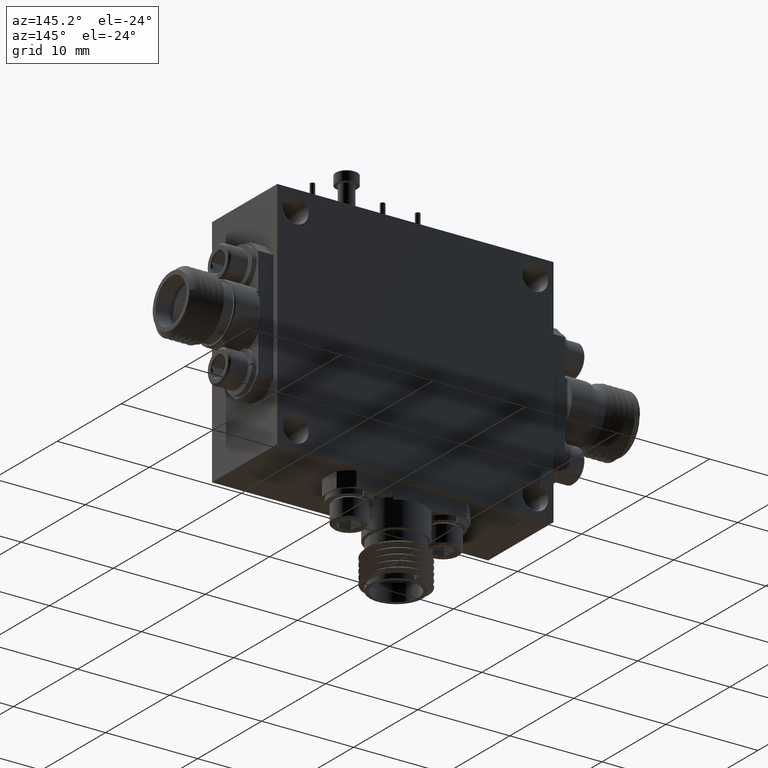
[diagram: clean part render]
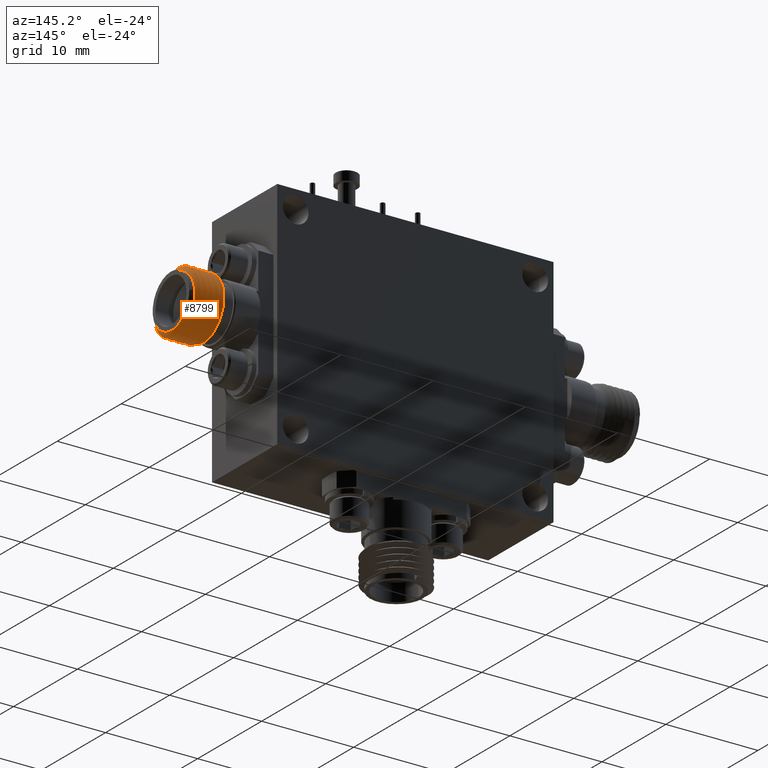
[diagram: same view with one face highlighted and labeled with its STEP entity id]
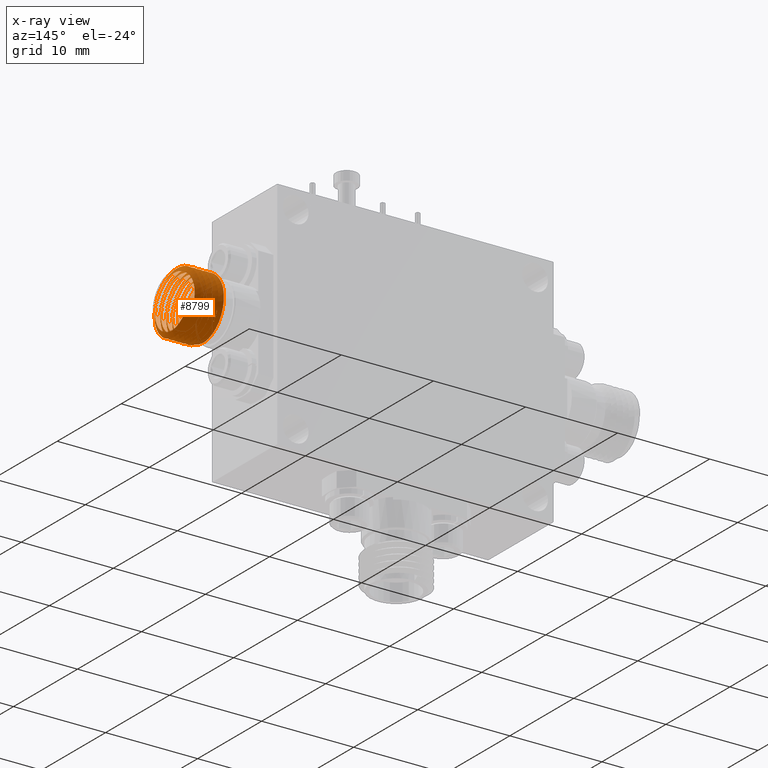
[diagram: x-ray of the same camera — body ghosted, the highlighted face saturated]
A machine part, auxiliary view. The second image highlights one B-rep face of the part: STEP entity #8799.
The next image is the same camera in x-ray: the body ghosted, the highlighted face saturated — about 0% of this face is hidden behind the body in this view.
In plain terms, the highlighted face is a freeform B-spline surface patch.
Its self-contained STEP definition (entity closure, byte-faithful):
#69 = CARTESIAN_POINT ( 'NONE',  ( 1.445136705098671600, 0.7924090424172739500, 0.6902091441540264500 ) ) ;
#95 = CARTESIAN_POINT ( 'NONE',  ( 1.501386705098672200, 0.8590513472626875000, 0.8825889073636091800 ) ) ;
#169 = CARTESIAN_POINT ( 'NONE',  ( 1.548803371765338700, 0.6132667375718605700, 0.8056370020797760700 ) ) ;
#182 = CARTESIAN_POINT ( 'NONE',  ( 1.493053371765338000, 0.7257667375718607200, 0.6517331915121101800 ) ) ;
#254 = CARTESIAN_POINT ( 'NONE',  ( 1.466436916796875800, 0.7559110217203618400, 0.9181370020797761100 ) ) ;
#552 = VERTEX_POINT ( 'NONE', #30111 ) ;
#789 =( BOUNDED_CURVE ( )  B_SPLINE_CURVE ( 2, ( #21081, #12543, #18237, #9972, #4088, #26933, #27441, #30385, #3592 ),
 .UNSPECIFIED., .F., .F. ) 
 B_SPLINE_CURVE_WITH_KNOTS ( ( 3, 2, 2, 2, 3 ),
 ( 0.3928571428571428500, 0.4047619047619047700, 0.4285714285714285500, 0.4523809523809523800, 0.4642857142857143000 ),
 .UNSPECIFIED. ) 
 CURVE ( )  GEOMETRIC_REPRESENTATION_ITEM ( )  RATIONAL_B_SPLINE_CURVE ( ( 0.9330127018922194100, 0.9330127018922194100, 1.000000000000000000, 0.8660254037844387100, 1.000000000000000000, 0.8660254037844387100, 1.000000000000000000, 0.9330127018922191900, 0.9330127018922194100 ) ) 
 REPRESENTATION_ITEM ( '' )  );
#818 = CARTESIAN_POINT ( 'NONE',  ( 1.430553371765338500, 0.7257667375718607200, 0.9595408126474419500 ) ) ;
#882 = CARTESIAN_POINT ( 'NONE',  ( 1.509220038432004900, 0.8382667375718606500, 0.7406850967959430800 ) ) ;
#964 = CARTESIAN_POINT ( 'NONE',  ( 1.413435858305856400, 0.8225242477504455300, 0.8630324219670892900 ) ) ;
#1267 = CARTESIAN_POINT ( 'NONE',  ( 1.496720038432005600, 0.6132667375718605700, 0.8705889073636088300 ) ) ;
#1368 = CARTESIAN_POINT ( 'NONE',  ( 1.492553371765338800, 0.7257667375718606100, 0.9181370020797760000 ) ) ;
#1374 = CARTESIAN_POINT ( 'NONE',  ( 1.416057198487562500, 0.6941773729246203400, 0.9186167917460650300 ) ) ;
#1456 =( BOUNDED_SURFACE ( )  B_SPLINE_SURFACE ( 1, 2, ( 
 ( #9903, #18295, #25094, #21380, #7627, #6835, #30186, #33099, #36042, #10529, #33226, #22521, #13973, #31323, #25591, #5419, #28125, #10655, #19962, #19578, #33991, #2092, #31077, #34372, #19703, #31577, #13602, #8252, #16519, #37202, #28253, #34248, #22915, #2474, #10912, #16889, #13849, #10785, #36948, #19451, #1966, #28632, #16640, #25341, #16767, #25715, #28506, #14099, #22406, #37342, #34494, #7881, #4913, #31204, #5045, #5170, #7758, #13726, #8131, #2213, #11163, #11030, #31450, #34121, #37075, #25466, #17008, #8002, #28383, #22660, #19824, #2347, #22784, #5300, #37462, #37595, #34751, #5801, #25958, #2737, #35013, #34883, #28770 ),
 ( #14736, #20488, #11683, #8373, #31838, #5665, #34626, #35140, #20352, #17507, #20087, #32226, #14219, #2864, #23164, #14482, #2606, #8746, #14609, #23537, #11555, #8862, #26212, #25844, #17642, #20608, #11424, #182, #29151, #14352, #31977, #31708, #26095, #32102, #23039, #8626, #17257, #37714, #17385, #29022, #37847, #3121, #2987, #26345, #11293, #20217, #17126, #5548, #8502, #23292, #69, #28902, #23416, #5928, #29279, #11810, #21103, #818, #23669, #23910, #6185, #35268, #26474, #21219, #26597, #8995, #17884, #18134, #23792, #20726, #26833, #9244, #24039, #20977, #35383, #15106, #29657, #3492, #3370, #9487, #29398, #12059, #12191 ) ),
 .UNSPECIFIED., .F., .F., .F. ) 
 B_SPLINE_SURFACE_WITH_KNOTS ( ( 2, 2 ),
 ( 3, 2, 2, 2, 2, 2, 2, 2, 2, 2, 2, 2, 2, 2, 2, 2, 2, 2, 2, 2, 2, 2, 2, 2, 2, 2, 2, 2, 2, 2, 2, 2, 2, 2, 2, 2, 2, 2, 2, 2, 2, 3 ),
 ( 0.0000000000000000000, 1.000000000000000000 ),
 ( 0.0000000000000000000, 0.02380952380952380800, 0.04761904761904761600, 0.07142857142857142500, 0.09523809523809523300, 0.1190476190476190400, 0.1428571428571428500, 0.1666666666666666600, 0.1904761904761904700, 0.2142857142857142700, 0.2380952380952380800, 0.2619047619047619200, 0.2857142857142857000, 0.3095238095238095300, 0.3333333333333333100, 0.3571428571428571500, 0.3809523809523809300, 0.4047619047619047700, 0.4285714285714285500, 0.4523809523809523800, 0.4761904761904761600, 0.5000000000000000000, 0.5238095238095238400, 0.5476190476190476700, 0.5714285714285714000, 0.5952380952380952300, 0.6190476190476190700, 0.6428571428571429000, 0.6666666666666666300, 0.6904761904761904700, 0.7142857142857143000, 0.7380952380952381400, 0.7619047619047618600, 0.7857142857142857000, 0.8095238095238095300, 0.8333333333333333700, 0.8571428571428571000, 0.8809523809523809300, 0.9047619047619047700, 0.9285714285714286000, 0.9523809523809523300, 0.9713223369569994300 ),
 .UNSPECIFIED. ) 
 GEOMETRIC_REPRESENTATION_ITEM ( )  RATIONAL_B_SPLINE_SURFACE ( (
 ( 1.000000000000000000, 0.8660254037844387100, 1.000000000000000000, 0.8660254037844387100, 1.000000000000000000, 0.8660254037844387100, 1.000000000000000000, 0.8660254037844387100, 1.000000000000000000, 0.8660254037844387100, 1.000000000000000000, 0.8660254037844387100, 1.000000000000000000, 0.8660254037844387100, 1.000000000000000000, 0.8660254037844387100, 1.000000000000000000, 0.8660254037844387100, 1.000000000000000000, 0.8660254037844387100, 1.000000000000000000, 0.8660254037844387100, 1.000000000000000000, 0.8660254037844387100, 1.000000000000000000, 0.8660254037844387100, 1.000000000000000000, 0.8660254037844387100, 1.000000000000000000, 0.8660254037844387100, 1.000000000000000000, 0.8660254037844387100, 1.000000000000000000, 0.8660254037844387100, 1.000000000000000000, 0.8660254037844387100, 1.000000000000000000, 0.8660254037844387100, 1.000000000000000000, 0.8660254037844387100, 1.000000000000000000, 0.8660254037844387100, 1.000000000000000000, 0.8660254037844387100, 1.000000000000000000, 0.8660254037844387100, 1.000000000000000000, 0.8660254037844387100, 1.000000000000000000, 0.8660254037844387100, 1.000000000000000000, 0.8660254037844387100, 1.000000000000000000, 0.8660254037844387100, 1.000000000000000000, 0.8660254037844387100, 1.000000000000000000, 0.8660254037844387100, 1.000000000000000000, 0.8660254037844387100, 1.000000000000000000, 0.8660254037844387100, 1.000000000000000000, 0.8660254037844387100, 1.000000000000000000, 0.8660254037844387100, 1.000000000000000000, 0.8660254037844387100, 1.000000000000000000, 0.8660254037844387100, 1.000000000000000000, 0.8660254037844387100, 1.000000000000000000, 0.8660254037844387100, 1.000000000000000000, 0.8660254037844387100, 1.000000000000000000, 0.8660254037844387100, 1.000000000000000000, 0.8660254037844387100, 1.000000000000000000, 0.8934180972857380700, 0.9564161344567205800),
 ( 1.000000000000000000, 0.8660254037844387100, 1.000000000000000000, 0.8660254037844387100, 1.000000000000000000, 0.8660254037844387100, 1.000000000000000000, 0.8660254037844387100, 1.000000000000000000, 0.8660254037844387100, 1.000000000000000000, 0.8660254037844387100, 1.000000000000000000, 0.8660254037844387100, 1.000000000000000000, 0.8660254037844387100, 1.000000000000000000, 0.8660254037844387100, 1.000000000000000000, 0.8660254037844387100, 1.000000000000000000, 0.8660254037844387100, 1.000000000000000000, 0.8660254037844387100, 1.000000000000000000, 0.8660254037844387100, 1.000000000000000000, 0.8660254037844387100, 1.000000000000000000, 0.8660254037844387100, 1.000000000000000000, 0.8660254037844387100, 1.000000000000000000, 0.8660254037844387100, 1.000000000000000000, 0.8660254037844387100, 1.000000000000000000, 0.8660254037844387100, 1.000000000000000000, 0.8660254037844387100, 1.000000000000000000, 0.8660254037844387100, 1.000000000000000000, 0.8660254037844387100, 1.000000000000000000, 0.8660254037844387100, 1.000000000000000000, 0.8660254037844387100, 1.000000000000000000, 0.8660254037844387100, 1.000000000000000000, 0.8660254037844387100, 1.000000000000000000, 0.8660254037844387100, 1.000000000000000000, 0.8660254037844387100, 1.000000000000000000, 0.8660254037844387100, 1.000000000000000000, 0.8660254037844387100, 1.000000000000000000, 0.8660254037844387100, 1.000000000000000000, 0.8660254037844387100, 1.000000000000000000, 0.8660254037844387100, 1.000000000000000000, 0.8660254037844387100, 1.000000000000000000, 0.8660254037844387100, 1.000000000000000000, 0.8660254037844387100, 1.000000000000000000, 0.8660254037844387100, 1.000000000000000000, 0.8660254037844387100, 1.000000000000000000, 0.8660254037844387100, 1.000000000000000000, 0.8660254037844387100, 1.000000000000000000, 0.8934180972857380700, 0.9564161344567205800) ) ) 
 REPRESENTATION_ITEM ( '' )  SURFACE ( )  );
#1496 = CARTESIAN_POINT ( 'NONE',  ( 1.521720038432005800, 0.6132667375718605700, 0.8705889073636088300 ) ) ;
#1543 = EDGE_CURVE ( 'NONE', #28323, #5098, #6086, .T. ) ;
#1611 = CARTESIAN_POINT ( 'NONE',  ( 1.417781287204287900, 0.6162356694927320100, 0.8553654262059043900 ) ) ;
#1627 = ORIENTED_EDGE ( 'NONE', *, *, #20136, .T. ) ;
#1635 = CARTESIAN_POINT ( 'NONE',  ( 1.542553371765338600, 0.7257667375718607200, 0.9181370020797760000 ) ) ;
#1667 = CARTESIAN_POINT ( 'NONE',  ( 1.432136705098671500, 0.7820167375718607400, 0.7082091441540264700 ) ) ;
#1741 = CARTESIAN_POINT ( 'NONE',  ( 1.420502487908089400, 0.6518695154059800400, 0.7048266402017734400 ) ) ;
#1823 = ORIENTED_EDGE ( 'NONE', *, *, #4270, .F. ) ;
#1933 = CARTESIAN_POINT ( 'NONE',  ( 1.438386705098672500, 0.8382667375718606500, 0.8705889073636088300 ) ) ;
#1966 = CARTESIAN_POINT ( 'NONE',  ( 1.477970038432004900, 0.6695167375718607000, 0.7082091441540266900 ) ) ;
#1998 = EDGE_CURVE ( 'NONE', #26589, #21382, #23796, .T. ) ;
#2092 = CARTESIAN_POINT ( 'NONE',  ( 1.517553371765338900, 0.7257667375718607200, 0.9355408126474417100 ) ) ;
#2117 = CARTESIAN_POINT ( 'NONE',  ( 1.515970038432005000, 0.6591244327264472700, 0.6902091441540264500 ) ) ;
#2168 = CARTESIAN_POINT ( 'NONE',  ( 1.559303371765338600, 0.8243001079770782000, 0.7513468103635165800 ) ) ;
#2213 = CARTESIAN_POINT ( 'NONE',  ( 1.438386705098672100, 0.8382667375718607600, 0.8705889073636089400 ) ) ;
#2347 = CARTESIAN_POINT ( 'NONE',  ( 1.413386705098671500, 0.8382667375718607600, 0.8705889073636089400 ) ) ;
#2375 = CARTESIAN_POINT ( 'NONE',  ( 1.507636705098671600, 0.6591244327264472700, 0.9210648600055255700 ) ) ;
#2474 = CARTESIAN_POINT ( 'NONE',  ( 1.492553371765339000, 0.7257667375718607200, 0.9355408126474417100 ) ) ;
#2504 = CARTESIAN_POINT ( 'NONE',  ( 1.455553371765338200, 0.7257667375718607200, 0.9595408126474421800 ) ) ;
#2509 =( BOUNDED_CURVE ( )  B_SPLINE_CURVE ( 1, ( #7231, #12852 ),
 .UNSPECIFIED., .F., .F. ) 
 B_SPLINE_CURVE_WITH_KNOTS ( ( 2, 2 ),
 ( 0.0000000000000000000, 0.0006096000000000020200 ),
 .UNSPECIFIED. ) 
 CURVE ( )  GEOMETRIC_REPRESENTATION_ITEM ( )  RATIONAL_B_SPLINE_CURVE ( ( 0.9331060218273289400, 0.9331060218273289400 ) ) 
 REPRESENTATION_ITEM ( '' )  );
#2606 = CARTESIAN_POINT ( 'NONE',  ( 1.515970038432005000, 0.6591244327264473800, 0.6902091441540266800 ) ) ;
#2634 = CARTESIAN_POINT ( 'NONE',  ( 1.459720038432005900, 0.5924821278810338300, 0.8825889073636089500 ) ) ;
#2737 = CARTESIAN_POINT ( 'NONE',  ( 1.396720038432005100, 0.6132667375718605700, 0.8705889073636089400 ) ) ;
#2766 = CARTESIAN_POINT ( 'NONE',  ( 1.445136705098671600, 0.7924090424172741700, 0.6902091441540261200 ) ) ;
#2864 = CARTESIAN_POINT ( 'NONE',  ( 1.522220038432005000, 0.8590513472626872800, 0.7286850967959431800 ) ) ;
#2889 =( BOUNDED_CURVE ( )  B_SPLINE_CURVE ( 2, ( #1635, #22085, #8054, #19884, #7814, #37391, #11218, #5100, #25518 ),
 .UNSPECIFIED., .F., .F. ) 
 B_SPLINE_CURVE_WITH_KNOTS ( ( 3, 2, 2, 2, 3 ),
 ( 0.1071428571428571100, 0.1190476190476190400, 0.1428571428571428500, 0.1666666666666666600, 0.1785714285714286000 ),
 .UNSPECIFIED. ) 
 CURVE ( )  GEOMETRIC_REPRESENTATION_ITEM ( )  RATIONAL_B_SPLINE_CURVE ( ( 0.9330127018922191900, 0.9330127018922191900, 1.000000000000000000, 0.8660254037844387100, 1.000000000000000000, 0.8660254037844387100, 1.000000000000000000, 0.9330127018922191900, 0.9330127018922194100 ) ) 
 REPRESENTATION_ITEM ( '' )  );
#2987 = CARTESIAN_POINT ( 'NONE',  ( 1.461803371765338300, 0.5924821278810341600, 0.8056370020797757300 ) ) ;
#3017 = CARTESIAN_POINT ( 'NONE',  ( 1.432636705098671900, 0.6591244327264472700, 0.9210648600055252300 ) ) ;
#3103 = CARTESIAN_POINT ( 'NONE',  ( 1.544636705098671600, 0.6695167375718605900, 0.9030648600055252200 ) ) ;
#3121 = CARTESIAN_POINT ( 'NONE',  ( 1.463886705098671700, 0.5924821278810340500, 0.7286850967959431800 ) ) ;
#3179 = EDGE_CURVE ( 'NONE', #22546, #34628, #10883, .T. ) ;
#3370 = CARTESIAN_POINT ( 'NONE',  ( 1.386803371765338500, 0.5924821278810340500, 0.8056370020797757300 ) ) ;
#3407 = VERTEX_POINT ( 'NONE', #17541 ) ;
#3492 = CARTESIAN_POINT ( 'NONE',  ( 1.388886705098671700, 0.5924821278810340500, 0.7286850967959431800 ) ) ;
#3536 = CARTESIAN_POINT ( 'NONE',  ( 1.442553371765338500, 0.7257667375718603900, 0.9181370020797758900 ) ) ;
#3580 =( BOUNDED_CURVE ( )  B_SPLINE_CURVE ( 2, ( #26783, #254, #26284, #20671, #26658, #35079, #18074, #20427, #23735 ),
 .UNSPECIFIED., .F., .F. ) 
 B_SPLINE_CURVE_WITH_KNOTS ( ( 3, 2, 2, 2, 3 ),
 ( 0.5357142857142857000, 0.5476190476190476700, 0.5714285714285714000, 0.5952380952380952300, 0.6071428571428572100 ),
 .UNSPECIFIED. ) 
 CURVE ( )  GEOMETRIC_REPRESENTATION_ITEM ( )  RATIONAL_B_SPLINE_CURVE ( ( 0.9330127018922193000, 0.9330127018922189700, 1.000000000000000000, 0.8660254037844387100, 1.000000000000000000, 0.8660254037844387100, 1.000000000000000000, 0.9330127018922189700, 0.9330127018922193000 ) ) 
 REPRESENTATION_ITEM ( '' )  );
#3592 = CARTESIAN_POINT ( 'NONE',  ( 1.480053371765338100, 0.7257667375718607200, 0.6931370020797761300 ) ) ;
#3914 = ORIENTED_EDGE ( 'NONE', *, *, #18828, .T. ) ;
#3915 = CARTESIAN_POINT ( 'NONE',  ( 1.452970038432005000, 0.6695167375718607000, 0.7082091441540264700 ) ) ;
#4066 = CARTESIAN_POINT ( 'NONE',  ( 1.505053371765338700, 0.7257667375718607200, 0.6931370020797762400 ) ) ;
#4088 = CARTESIAN_POINT ( 'NONE',  ( 1.486303371765338400, 0.8382667375718606500, 0.8056370020797757300 ) ) ;
#4270 = EDGE_CURVE ( 'NONE', #552, #26589, #4745, .T. ) ;
#4301 = CARTESIAN_POINT ( 'NONE',  ( 1.420125083403611000, 0.6345801428967884400, 0.7211077875101334900 ) ) ;
#4435 = CARTESIAN_POINT ( 'NONE',  ( 1.420738427281999600, 0.6650800393853533200, 0.6958974366560986000 ) ) ;
#4564 = CARTESIAN_POINT ( 'NONE',  ( 1.419322748971967500, 0.6107199281697169900, 0.7622540224639061700 ) ) ;
#4739 = CARTESIAN_POINT ( 'NONE',  ( 1.558142366395370200, 0.8091695925827301300, 0.7238858523038188600 ) ) ;
#4745 = B_SPLINE_CURVE_WITH_KNOTS ( 'NONE', 3,
 ( #10072, #22307, #10195, #30491, #4435, #1741, #7410, #4301, #33765, #30735, #7657, #4564, #18965, #19088, #16152, #27900, #24867, #4820, #16418, #1611, #7278, #30609, #13015, #27645, #22060, #16290, #25252, #36716, #1374, #21801, #13132, #27766 ),
 .UNSPECIFIED., .F., .F.,
 ( 4, 2, 2, 2, 2, 2, 2, 2, 2, 2, 2, 2, 2, 2, 2, 4 ),
 ( 0.006133997676716807100, 0.007340452330126453000, 0.007943679656831272000, 0.008546906983536089300, 0.009150134310240908400, 0.009753361636945727400, 0.01035658896365055000, 0.01095981629035537200, 0.01156304361706019500, 0.01216627094376501700, 0.01276949827046984200, 0.01337272559717466400, 0.01397595292387948700, 0.01457918025058431100, 0.01518240757728913500, 0.01578563490399395600 ),
 .UNSPECIFIED. ) ;
#4820 = CARTESIAN_POINT ( 'NONE',  ( 1.418188065910174000, 0.6078849873148151100, 0.8328850567060306400 ) ) ;
#4913 = CARTESIAN_POINT ( 'NONE',  ( 1.452970038432005000, 0.6695167375718607000, 0.7082091441540264700 ) ) ;
#4940 = CARTESIAN_POINT ( 'NONE',  ( 1.528470038432005400, 0.7924090424172739500, 0.9210648600055256800 ) ) ;
#5045 = CARTESIAN_POINT ( 'NONE',  ( 1.448803371765338600, 0.6132667375718606800, 0.8056370020797757300 ) ) ;
#5072 = CARTESIAN_POINT ( 'NONE',  ( 1.540970038432005100, 0.6591244327264472700, 0.6902091441540264500 ) ) ;
#5098 = VERTEX_POINT ( 'NONE', #35450 ) ;
#5100 = CARTESIAN_POINT ( 'NONE',  ( 1.531169826733801000, 0.7559110217203618400, 0.6931370020797759100 ) ) ;
#5170 = CARTESIAN_POINT ( 'NONE',  ( 1.446720038432005400, 0.6132667375718605700, 0.8705889073636089400 ) ) ;
#5300 = CARTESIAN_POINT ( 'NONE',  ( 1.409220038432005100, 0.8382667375718607600, 0.7406850967959430800 ) ) ;
#5419 = CARTESIAN_POINT ( 'NONE',  ( 1.530053371765338400, 0.7257667375718607200, 0.6757331915121102000 ) ) ;
#5446 = CARTESIAN_POINT ( 'NONE',  ( 1.472220038432004600, 0.8590513472626875000, 0.7286850967959430700 ) ) ;
#5548 = CARTESIAN_POINT ( 'NONE',  ( 1.451386705098672200, 0.8590513472626872800, 0.8825889073636090700 ) ) ;
#5569 = CARTESIAN_POINT ( 'NONE',  ( 1.468053371765337900, 0.7257667375718607200, 0.6517331915121099600 ) ) ;
#5665 = CARTESIAN_POINT ( 'NONE',  ( 1.538886705098671600, 0.5924821278810340500, 0.7286850967959431800 ) ) ;
#5688 = CARTESIAN_POINT ( 'NONE',  ( 1.421744615035611900, 0.7257667375727384600, 0.6787458132761099400 ) ) ;
#5695 = CARTESIAN_POINT ( 'NONE',  ( 1.495136705098671700, 0.7924090424172741700, 0.6902091441540264500 ) ) ;
#5801 = CARTESIAN_POINT ( 'NONE',  ( 1.400886705098671700, 0.6132667375718605700, 0.7406850967959430800 ) ) ;
#5928 = CARTESIAN_POINT ( 'NONE',  ( 1.438886705098671800, 0.5924821278810340500, 0.7286850967959431800 ) ) ;
#5959 = CARTESIAN_POINT ( 'NONE',  ( 1.488886705098671400, 0.5924821278810338300, 0.7286850967959430700 ) ) ;
#6039 = CARTESIAN_POINT ( 'NONE',  ( 1.555053371765338300, 0.7257667375718607200, 0.6931370020797761300 ) ) ;
#6086 =( BOUNDED_CURVE ( )  B_SPLINE_CURVE ( 2, ( #6039, #9108, #20335, #23402, #169, #20594, #3103, #29514, #26459 ),
 .UNSPECIFIED., .F., .F. ) 
 B_SPLINE_CURVE_WITH_KNOTS ( ( 3, 2, 2, 2, 3 ),
 ( 0.03571428571428569800, 0.04761904761904761600, 0.07142857142857142500, 0.09523809523809523300, 0.1071428571428571100 ),
 .UNSPECIFIED. ) 
 CURVE ( )  GEOMETRIC_REPRESENTATION_ITEM ( )  RATIONAL_B_SPLINE_CURVE ( ( 0.9330127018922194100, 0.9330127018922193000, 1.000000000000000000, 0.8660254037844387100, 1.000000000000000000, 0.8660254037844387100, 1.000000000000000000, 0.9330127018922194100, 0.9330127018922191900 ) ) 
 REPRESENTATION_ITEM ( '' )  );
#6185 = CARTESIAN_POINT ( 'NONE',  ( 1.424303371765338400, 0.8590513472626872800, 0.8056370020797757300 ) ) ;
#6257 = ORIENTED_EDGE ( 'NONE', *, *, #23418, .T. ) ;
#6384 = VERTEX_POINT ( 'NONE', #13023 ) ;
#6488 = CARTESIAN_POINT ( 'NONE',  ( 1.448803371765338600, 0.6132667375718606800, 0.8056370020797757300 ) ) ;
#6835 = CARTESIAN_POINT ( 'NONE',  ( 1.550886705098672300, 0.6132667375718605700, 0.7406850967959430800 ) ) ;
#7231 = CARTESIAN_POINT ( 'NONE',  ( 1.559303371765338400, 0.8243001079770782000, 0.7513468103635165800 ) ) ;
#7278 = CARTESIAN_POINT ( 'NONE',  ( 1.417644029088979600, 0.6199589627647874600, 0.8623561521161233800 ) ) ;
#7410 = CARTESIAN_POINT ( 'NONE',  ( 1.420379849992234700, 0.6457727802949525500, 0.7098724194838287300 ) ) ;
#7503 = CARTESIAN_POINT ( 'NONE',  ( 1.442553371765338700, 0.7257667375718603900, 0.9181370020797758900 ) ) ;
#7508 = FACE_OUTER_BOUND ( 'NONE', #23958, .T. ) ;
#7627 = CARTESIAN_POINT ( 'NONE',  ( 1.552970038432004700, 0.6695167375718607000, 0.7082091441540265800 ) ) ;
#7657 = CARTESIAN_POINT ( 'NONE',  ( 1.419591432476402500, 0.6168707999093555600, 0.7475513592519702500 ) ) ;
#7659 = CARTESIAN_POINT ( 'NONE',  ( 1.517553371765338700, 0.7257667375718606100, 0.9181370020797757800 ) ) ;
#7705 = CARTESIAN_POINT ( 'NONE',  ( 1.556169826733801600, 0.7559110217203621800, 0.6931370020797761300 ) ) ;
#7758 = CARTESIAN_POINT ( 'NONE',  ( 1.444636705098671700, 0.6695167375718605900, 0.9030648600055251100 ) ) ;
#7814 = CARTESIAN_POINT ( 'NONE',  ( 1.536303371765338300, 0.8382667375718606500, 0.8056370020797760700 ) ) ;
#7881 = CARTESIAN_POINT ( 'NONE',  ( 1.455053371765338200, 0.7257667375718607200, 0.6757331915121102000 ) ) ;
#8002 = CARTESIAN_POINT ( 'NONE',  ( 1.421720038432005700, 0.6132667375718605700, 0.8705889073636089400 ) ) ;
#8054 = CARTESIAN_POINT ( 'NONE',  ( 1.540470038432004900, 0.7820167375718605200, 0.9030648600055252200 ) ) ;
#8131 = CARTESIAN_POINT ( 'NONE',  ( 1.440470038432004800, 0.7820167375718605200, 0.9030648600055251100 ) ) ;
#8155 = CARTESIAN_POINT ( 'NONE',  ( 1.513886705098672000, 0.5924821278810338300, 0.7286850967959430700 ) ) ;
#8252 = CARTESIAN_POINT ( 'NONE',  ( 1.505053371765338500, 0.7257667375718607200, 0.6757331915121102000 ) ) ;
#8373 = CARTESIAN_POINT ( 'NONE',  ( 1.543053371765338300, 0.7257667375718607200, 0.6517331915121099600 ) ) ;
#8403 = CARTESIAN_POINT ( 'NONE',  ( 1.430553371765338300, 0.7257667375718607200, 0.9595408126474422900 ) ) ;
#8407 = ORIENTED_EDGE ( 'NONE', *, *, #28818, .T. ) ;
#8502 = CARTESIAN_POINT ( 'NONE',  ( 1.449303371765338300, 0.8590513472626872800, 0.8056370020797757300 ) ) ;
#8513 = CARTESIAN_POINT ( 'NONE',  ( 1.469636705098671600, 0.6695167375718605900, 0.9030648600055251100 ) ) ;
#8528 = CARTESIAN_POINT ( 'NONE',  ( 1.499303371765338600, 0.8590513472626875000, 0.8056370020797757300 ) ) ;
#8595 = ORIENTED_EDGE ( 'NONE', *, *, #19302, .F. ) ;
#8626 = CARTESIAN_POINT ( 'NONE',  ( 1.476386705098672100, 0.8590513472626872800, 0.8825889073636090700 ) ) ;
#8746 = CARTESIAN_POINT ( 'NONE',  ( 1.513886705098672000, 0.5924821278810340500, 0.7286850967959431800 ) ) ;
#8752 = CARTESIAN_POINT ( 'NONE',  ( 1.517553371765338400, 0.7257667375718606100, 0.9181370020797758900 ) ) ;
#8770 = CARTESIAN_POINT ( 'NONE',  ( 1.453470038432005200, 0.7924090424172739500, 0.9210648600055252300 ) ) ;
#8799 = ADVANCED_FACE ( 'NONE', ( #7508 ), #1456, .F. ) ;
#8862 = CARTESIAN_POINT ( 'NONE',  ( 1.505553371765338200, 0.7257667375718607200, 0.9595408126474418400 ) ) ;
#8884 = CARTESIAN_POINT ( 'NONE',  ( 1.424256247732782300, 0.8508311698006582000, 0.7645612643582279100 ) ) ;
#8891 = CARTESIAN_POINT ( 'NONE',  ( 1.436803371765338300, 0.5924821278810338300, 0.8056370020797757300 ) ) ;
#8987 = ORIENTED_EDGE ( 'NONE', *, *, #24070, .T. ) ;
#8995 = CARTESIAN_POINT ( 'NONE',  ( 1.413886705098672100, 0.5924821278810340500, 0.7286850967959431800 ) ) ;
#9108 = CARTESIAN_POINT ( 'NONE',  ( 1.553936916796875100, 0.6956224534233592700, 0.6931370020797759100 ) ) ;
#9244 = CARTESIAN_POINT ( 'NONE',  ( 1.401386705098671700, 0.8590513472626872800, 0.8825889073636090700 ) ) ;
#9360 = VERTEX_POINT ( 'NONE', #7503 ) ;
#9389 = CARTESIAN_POINT ( 'NONE',  ( 1.413620017084589000, 0.8177246944047420500, 0.8717487485196611100 ) ) ;
#9415 = VERTEX_POINT ( 'NONE', #28249 ) ;
#9472 = CARTESIAN_POINT ( 'NONE',  ( 1.430053371765337900, 0.7257667375718607200, 0.6931370020797758000 ) ) ;
#9487 = CARTESIAN_POINT ( 'NONE',  ( 1.384720038432005100, 0.5924821278810340500, 0.8825889073636090700 ) ) ;
#9697 = CARTESIAN_POINT ( 'NONE',  ( 1.493669826733801800, 0.6956224534233592700, 0.9181370020797760000 ) ) ;
#9796 = CARTESIAN_POINT ( 'NONE',  ( 1.446720038432005600, 0.6132667375718605700, 0.8705889073636088300 ) ) ;
#9802 = CARTESIAN_POINT ( 'NONE',  ( 1.517553371765338700, 0.7257667375718606100, 0.9181370020797757800 ) ) ;
#9903 = CARTESIAN_POINT ( 'NONE',  ( 1.561303371765338600, 0.8382667375718606500, 0.8056370020797760700 ) ) ;
#9925 = ORIENTED_EDGE ( 'NONE', *, *, #10089, .T. ) ;
#9950 = CARTESIAN_POINT ( 'NONE',  ( 1.502970038432005100, 0.6695167375718607000, 0.7082091441540266900 ) ) ;
#9972 = CARTESIAN_POINT ( 'NONE',  ( 1.488386705098672100, 0.8382667375718606500, 0.8705889073636088300 ) ) ;
#10057 = CARTESIAN_POINT ( 'NONE',  ( 1.516436916796875600, 0.7559110217203618400, 0.9181370020797760000 ) ) ;
#10072 = CARTESIAN_POINT ( 'NONE',  ( 1.421744615035611900, 0.7257667375727384600, 0.6787458132761099400 ) ) ;
#10075 = CARTESIAN_POINT ( 'NONE',  ( 1.527970038432005000, 0.6695167375718607000, 0.7082091441540266900 ) ) ;
#10089 = EDGE_CURVE ( 'NONE', #36772, #13847, #11280, .T. ) ;
#10195 = CARTESIAN_POINT ( 'NONE',  ( 1.421220255063707400, 0.6940081429892096500, 0.6826984334289041300 ) ) ;
#10375 = EDGE_CURVE ( 'NONE', #22467, #3407, #26019, .T. ) ;
#10529 = CARTESIAN_POINT ( 'NONE',  ( 1.542553371765339200, 0.7257667375718607200, 0.9355408126474417100 ) ) ;
#10655 = CARTESIAN_POINT ( 'NONE',  ( 1.525886705098671700, 0.6132667375718605700, 0.7406850967959430800 ) ) ;
#10741 = CARTESIAN_POINT ( 'NONE',  ( 1.430053371765337900, 0.7257667375718607200, 0.6931370020797758000 ) ) ;
#10785 = CARTESIAN_POINT ( 'NONE',  ( 1.484220038432004800, 0.8382667375718607600, 0.7406850967959430800 ) ) ;
#10883 =( BOUNDED_CURVE ( )  B_SPLINE_CURVE ( 2, ( #30493, #18968, #10075, #33767, #16153, #1496, #19092, #21932, #7659 ),
 .UNSPECIFIED., .F., .F. ) 
 B_SPLINE_CURVE_WITH_KNOTS ( ( 3, 2, 2, 2, 3 ),
 ( 0.1785714285714286000, 0.1904761904761904700, 0.2142857142857142700, 0.2380952380952380800, 0.2500000000000000000 ),
 .UNSPECIFIED. ) 
 CURVE ( )  GEOMETRIC_REPRESENTATION_ITEM ( )  RATIONAL_B_SPLINE_CURVE ( ( 0.9330127018922194100, 0.9330127018922196300, 1.000000000000000000, 0.8660254037844387100, 1.000000000000000000, 0.8660254037844387100, 1.000000000000000000, 0.9330127018922194100, 0.9330127018922194100 ) ) 
 REPRESENTATION_ITEM ( '' )  );
#10912 = CARTESIAN_POINT ( 'NONE',  ( 1.490470038432005100, 0.7820167375718605200, 0.9030648600055252200 ) ) ;
#11030 = CARTESIAN_POINT ( 'NONE',  ( 1.434220038432005000, 0.8382667375718607600, 0.7406850967959430800 ) ) ;
#11063 = CARTESIAN_POINT ( 'NONE',  ( 1.509720038432006000, 0.5924821278810338300, 0.8825889073636089500 ) ) ;
#11163 = CARTESIAN_POINT ( 'NONE',  ( 1.436303371765338200, 0.8382667375718606500, 0.8056370020797757300 ) ) ;
#11218 = CARTESIAN_POINT ( 'NONE',  ( 1.532136705098671600, 0.7820167375718607400, 0.7082091441540266900 ) ) ;
#11280 =( BOUNDED_CURVE ( )  B_SPLINE_CURVE ( 2, ( #14450, #17741, #34860, #23507, #26448, #11912, #26568, #32328, #35243 ),
 .UNSPECIFIED., .F., .F. ) 
 B_SPLINE_CURVE_WITH_KNOTS ( ( 3, 2, 2, 2, 3 ),
 ( 0.7500000000000000000, 0.7619047619047618600, 0.7857142857142857000, 0.8095238095238095300, 0.8214285714285714000 ),
 .UNSPECIFIED. ) 
 CURVE ( )  GEOMETRIC_REPRESENTATION_ITEM ( )  RATIONAL_B_SPLINE_CURVE ( ( 0.9330127018922194100, 0.9330127018922194100, 1.000000000000000000, 0.8660254037844387100, 1.000000000000000000, 0.8660254037844387100, 1.000000000000000000, 0.9330127018922196300, 0.9330127018922193000 ) ) 
 REPRESENTATION_ITEM ( '' )  );
#11293 = CARTESIAN_POINT ( 'NONE',  ( 1.457636705098671600, 0.6591244327264473800, 0.9210648600055250100 ) ) ;
#11424 = CARTESIAN_POINT ( 'NONE',  ( 1.495136705098671700, 0.7924090424172739500, 0.6902091441540266800 ) ) ;
#11448 = CARTESIAN_POINT ( 'NONE',  ( 1.422985126902538400, 0.8022174856185475500, 0.7011961146952111500 ) ) ;
#11454 = CARTESIAN_POINT ( 'NONE',  ( 1.449303371765338500, 0.8590513472626875000, 0.8056370020797757300 ) ) ;
#11555 = CARTESIAN_POINT ( 'NONE',  ( 1.507636705098671200, 0.6591244327264473800, 0.9210648600055252300 ) ) ;
#11581 = CARTESIAN_POINT ( 'NONE',  ( 1.415494615035597800, 0.7257667375718581700, 0.9217028733361112300 ) ) ;
#11683 = CARTESIAN_POINT ( 'NONE',  ( 1.545136705098671700, 0.7924090424172739500, 0.6902091441540266800 ) ) ;
#11810 = CARTESIAN_POINT ( 'NONE',  ( 1.434720038432005600, 0.5924821278810340500, 0.8825889073636087300 ) ) ;
#11870 = CARTESIAN_POINT ( 'NONE',  ( 1.455053371765338200, 0.7257667375718603900, 0.6931370020797759100 ) ) ;
#11912 = CARTESIAN_POINT ( 'NONE',  ( 1.421720038432005700, 0.6132667375718605700, 0.8705889073636088300 ) ) ;
#11959 = CARTESIAN_POINT ( 'NONE',  ( 1.414881513313266400, 0.7596172332853401400, 0.9156555285812459900 ) ) ;
#12059 = CARTESIAN_POINT ( 'NONE',  ( 1.381030149865337200, 0.7105154136596389900, 0.9507354566812230600 ) ) ;
#12191 = CARTESIAN_POINT ( 'NONE',  ( 1.379265847514008900, 0.7669524577252514500, 0.9323986825509758000 ) ) ;
#12543 = CARTESIAN_POINT ( 'NONE',  ( 1.491436916796875700, 0.7559110217203618400, 0.9181370020797760000 ) ) ;
#12620 = CARTESIAN_POINT ( 'NONE',  ( 1.443669826733802200, 0.6956224534233593800, 0.9181370020797758900 ) ) ;
#12852 = CARTESIAN_POINT ( 'NONE',  ( 1.547303371765338200, 0.8425043537139127500, 0.7413165841869565600 ) ) ;
#13015 = CARTESIAN_POINT ( 'NONE',  ( 1.417227338146913200, 0.6339195069501273300, 0.8818206235530862100 ) ) ;
#13019 = CARTESIAN_POINT ( 'NONE',  ( 1.492553371765338800, 0.7257667375718606100, 0.9181370020797760000 ) ) ;
#13023 = CARTESIAN_POINT ( 'NONE',  ( 1.425435858305856600, 0.8533568498340998700, 0.8441798410170564500 ) ) ;
#13132 = CARTESIAN_POINT ( 'NONE',  ( 1.415637010787901900, 0.7178336397857730800, 0.9219495100138831400 ) ) ;
#13277 = CARTESIAN_POINT ( 'NONE',  ( 1.417553371765338400, 0.7257667375718603900, 0.9181370020797758900 ) ) ;
#13314 = CARTESIAN_POINT ( 'NONE',  ( 1.440470038432004800, 0.7820167375718605200, 0.9030648600055251100 ) ) ;
#13602 = CARTESIAN_POINT ( 'NONE',  ( 1.507136705098671700, 0.7820167375718607400, 0.7082091441540266900 ) ) ;
#13726 = CARTESIAN_POINT ( 'NONE',  ( 1.442553371765338700, 0.7257667375718607200, 0.9355408126474417100 ) ) ;
#13754 = CARTESIAN_POINT ( 'NONE',  ( 1.547303371765338200, 0.8425043537139126300, 0.7413165841869565600 ) ) ;
#13847 = VERTEX_POINT ( 'NONE', #13277 ) ;
#13849 = CARTESIAN_POINT ( 'NONE',  ( 1.486303371765338400, 0.8382667375718606500, 0.8056370020797757300 ) ) ;
#13973 = CARTESIAN_POINT ( 'NONE',  ( 1.536303371765338300, 0.8382667375718606500, 0.8056370020797760700 ) ) ;
#13980 =( BOUNDED_CURVE ( )  B_SPLINE_CURVE ( 2, ( #11870, #32279, #3915, #27395, #6488, #9796, #26890, #12620, #3536 ),
 .UNSPECIFIED., .F., .F. ) 
 B_SPLINE_CURVE_WITH_KNOTS ( ( 3, 2, 2, 2, 3 ),
 ( 0.6071428571428572100, 0.6190476190476190700, 0.6428571428571429000, 0.6666666666666666300, 0.6785714285714284900 ),
 .UNSPECIFIED. ) 
 CURVE ( )  GEOMETRIC_REPRESENTATION_ITEM ( )  RATIONAL_B_SPLINE_CURVE ( ( 0.9330127018922193000, 0.9330127018922196300, 1.000000000000000000, 0.8660254037844387100, 1.000000000000000000, 0.8660254037844387100, 1.000000000000000000, 0.9330127018922196300, 0.9330127018922193000 ) ) 
 REPRESENTATION_ITEM ( '' )  );
#13988 = CARTESIAN_POINT ( 'NONE',  ( 1.477970038432004900, 0.6695167375718607000, 0.7082091441540266900 ) ) ;
#14099 = CARTESIAN_POINT ( 'NONE',  ( 1.463386705098672200, 0.8382667375718607600, 0.8705889073636089400 ) ) ;
#14112 = CARTESIAN_POINT ( 'NONE',  ( 1.475886705098671900, 0.6132667375718605700, 0.7406850967959430800 ) ) ;
#14219 = CARTESIAN_POINT ( 'NONE',  ( 1.524303371765338500, 0.8590513472626872800, 0.8056370020797760700 ) ) ;
#14242 = CARTESIAN_POINT ( 'NONE',  ( 1.422549957913468400, 0.7753397498031680000, 0.6868805480213170400 ) ) ;
#14340 = EDGE_CURVE ( 'NONE', #22677, #9360, #13980, .T. ) ;
#14352 = CARTESIAN_POINT ( 'NONE',  ( 1.488886705098671400, 0.5924821278810340500, 0.7286850967959431800 ) ) ;
#14438 =( BOUNDED_CURVE ( )  B_SPLINE_CURVE ( 2, ( #2168, #4739, #25167, #7705, #28200 ),
 .UNSPECIFIED., .F., .F. ) 
 B_SPLINE_CURVE_WITH_KNOTS ( ( 3, 2, 3 ),
 ( 0.01146042570389163900, 0.02380952380952380800, 0.03571428571428569800 ),
 .UNSPECIFIED. ) 
 CURVE ( )  GEOMETRIC_REPRESENTATION_ITEM ( )  RATIONAL_B_SPLINE_CURVE ( ( 0.9331060218273290500, 0.9305124518422063200, 1.000000000000000000, 0.9330127018922194100, 0.9330127018922194100 ) ) 
 REPRESENTATION_ITEM ( '' )  );
#14450 = CARTESIAN_POINT ( 'NONE',  ( 1.430053371765337900, 0.7257667375718607200, 0.6931370020797758000 ) ) ;
#14482 = CARTESIAN_POINT ( 'NONE',  ( 1.518053371765338600, 0.7257667375718607200, 0.6517331915121101800 ) ) ;
#14565 = VERTEX_POINT ( 'NONE', #22880 ) ;
#14609 = CARTESIAN_POINT ( 'NONE',  ( 1.511803371765338500, 0.5924821278810341600, 0.8056370020797760700 ) ) ;
#14736 = CARTESIAN_POINT ( 'NONE',  ( 1.549303371765338400, 0.8590513472626871700, 0.8056370020797760700 ) ) ;
#14754 = CARTESIAN_POINT ( 'NONE',  ( 1.423452661562487400, 0.8250147737245064900, 0.7213020000187085900 ) ) ;
#15106 = CARTESIAN_POINT ( 'NONE',  ( 1.393053371765338400, 0.7257667375718607200, 0.6517331915121101800 ) ) ;
#15253 =( BOUNDED_CURVE ( )  B_SPLINE_CURVE ( 2, ( #4066, #30234, #9950, #30105, #27648, #1267, #36088, #9697, #13019 ),
 .UNSPECIFIED., .F., .F. ) 
 B_SPLINE_CURVE_WITH_KNOTS ( ( 3, 2, 2, 2, 3 ),
 ( 0.3214285714285714500, 0.3333333333333333100, 0.3571428571428571500, 0.3809523809523809300, 0.3928571428571428500 ),
 .UNSPECIFIED. ) 
 CURVE ( )  GEOMETRIC_REPRESENTATION_ITEM ( )  RATIONAL_B_SPLINE_CURVE ( ( 0.9330127018922194100, 0.9330127018922195200, 1.000000000000000000, 0.8660254037844387100, 1.000000000000000000, 0.8660254037844387100, 1.000000000000000000, 0.9330127018922194100, 0.9330127018922194100 ) ) 
 REPRESENTATION_ITEM ( '' )  );
#15506 = CARTESIAN_POINT ( 'NONE',  ( 1.413800793247272900, 0.8118381934025559200, 0.8797248464111269200 ) ) ;
#15906 = CARTESIAN_POINT ( 'NONE',  ( 1.415470038432004900, 0.7820167375718605200, 0.9030648600055251100 ) ) ;
#16152 = CARTESIAN_POINT ( 'NONE',  ( 1.418804494711859000, 0.6043216078321300700, 0.7933744990476017100 ) ) ;
#16153 = CARTESIAN_POINT ( 'NONE',  ( 1.523803371765338300, 0.6132667375718606800, 0.8056370020797760700 ) ) ;
#16290 = CARTESIAN_POINT ( 'NONE',  ( 1.416569950119910500, 0.6646627974971477400, 0.9068163767744090700 ) ) ;
#16403 = CARTESIAN_POINT ( 'NONE',  ( 1.480053371765338100, 0.7257667375718607200, 0.6931370020797761300 ) ) ;
#16418 = CARTESIAN_POINT ( 'NONE',  ( 1.418053914413956100, 0.6101770123907728200, 0.8406021773703849000 ) ) ;
#16519 = CARTESIAN_POINT ( 'NONE',  ( 1.502970038432005100, 0.6695167375718607000, 0.7082091441540266900 ) ) ;
#16640 = CARTESIAN_POINT ( 'NONE',  ( 1.473803371765338500, 0.6132667375718606800, 0.8056370020797760700 ) ) ;
#16670 = CARTESIAN_POINT ( 'NONE',  ( 1.522220038432005000, 0.8590513472626875000, 0.7286850967959430700 ) ) ;
#16767 = CARTESIAN_POINT ( 'NONE',  ( 1.469636705098671600, 0.6695167375718605900, 0.9030648600055251100 ) ) ;
#16889 = CARTESIAN_POINT ( 'NONE',  ( 1.488386705098672100, 0.8382667375718607600, 0.8705889073636089400 ) ) ;
#16903 = CARTESIAN_POINT ( 'NONE',  ( 1.468669826733801900, 0.6956224534233593800, 0.9181370020797758900 ) ) ;
#17008 = CARTESIAN_POINT ( 'NONE',  ( 1.423803371765338200, 0.6132667375718606800, 0.8056370020797757300 ) ) ;
#17026 = CARTESIAN_POINT ( 'NONE',  ( 1.543053371765338300, 0.7257667375718607200, 0.6517331915121096200 ) ) ;
#17126 = CARTESIAN_POINT ( 'NONE',  ( 1.453470038432005000, 0.7924090424172738300, 0.9210648600055250100 ) ) ;
#17155 = CARTESIAN_POINT ( 'NONE',  ( 1.497220038432005100, 0.8590513472626875000, 0.7286850967959430700 ) ) ;
#17220 = EDGE_CURVE ( 'NONE', #9415, #6384, #34147, .T. ) ;
#17257 = CARTESIAN_POINT ( 'NONE',  ( 1.474303371765338200, 0.8590513472626872800, 0.8056370020797757300 ) ) ;
#17280 = CARTESIAN_POINT ( 'NONE',  ( 1.474303371765338400, 0.8590513472626875000, 0.8056370020797757300 ) ) ;
#17385 = CARTESIAN_POINT ( 'NONE',  ( 1.470136705098671600, 0.7924090424172739500, 0.6902091441540264500 ) ) ;
#17409 = CARTESIAN_POINT ( 'NONE',  ( 1.425435858305856600, 0.8533568498340998700, 0.8441798410170564500 ) ) ;
#17413 = CARTESIAN_POINT ( 'NONE',  ( 1.461803371765338300, 0.5924821278810338300, 0.8056370020797757300 ) ) ;
#17507 = CARTESIAN_POINT ( 'NONE',  ( 1.530553371765338300, 0.7257667375718607200, 0.9595408126474418400 ) ) ;
#17535 = CARTESIAN_POINT ( 'NONE',  ( 1.493053371765338000, 0.7257667375718607200, 0.6517331915121099600 ) ) ;
#17541 = CARTESIAN_POINT ( 'NONE',  ( 1.467553371765338600, 0.7257667375718603900, 0.9181370020797758900 ) ) ;
#17597 = ORIENTED_EDGE ( 'NONE', *, *, #3179, .T. ) ;
#17642 = CARTESIAN_POINT ( 'NONE',  ( 1.499303371765338600, 0.8590513472626872800, 0.8056370020797757300 ) ) ;
#17741 = CARTESIAN_POINT ( 'NONE',  ( 1.428936916796875100, 0.6956224534233593800, 0.6931370020797758000 ) ) ;
#17884 = CARTESIAN_POINT ( 'NONE',  ( 1.411803371765338400, 0.5924821278810340500, 0.8056370020797757300 ) ) ;
#18036 = CARTESIAN_POINT ( 'NONE',  ( 1.414549083705076300, 0.7777056172120537800, 0.9077173985576266800 ) ) ;
#18074 = CARTESIAN_POINT ( 'NONE',  ( 1.457136705098671700, 0.7820167375718607400, 0.7082091441540264700 ) ) ;
#18134 = CARTESIAN_POINT ( 'NONE',  ( 1.409720038432004800, 0.5924821278810340500, 0.8825889073636087300 ) ) ;
#18237 = CARTESIAN_POINT ( 'NONE',  ( 1.490470038432005100, 0.7820167375718605200, 0.9030648600055252200 ) ) ;
#18295 = CARTESIAN_POINT ( 'NONE',  ( 1.559220038432005600, 0.8382667375718607600, 0.7406850967959430800 ) ) ;
#18451 = CARTESIAN_POINT ( 'NONE',  ( 1.506169826733801500, 0.7559110217203620600, 0.6931370020797761300 ) ) ;
#18517 =( BOUNDED_CURVE ( )  B_SPLINE_CURVE ( 2, ( #33264, #30355, #15906, #24363, #27151 ),
 .UNSPECIFIED., .F., .F. ) 
 B_SPLINE_CURVE_WITH_KNOTS ( ( 3, 2, 3 ),
 ( 0.8214285714285714000, 0.8333333333333333700, 0.8449760257393191800 ),
 .UNSPECIFIED. ) 
 CURVE ( )  GEOMETRIC_REPRESENTATION_ITEM ( )  RATIONAL_B_SPLINE_CURVE ( ( 0.9330127018922193000, 0.9330127018922189700, 1.000000000000000000, 0.9344873494139346300, 0.9330451645437177800 ) ) 
 REPRESENTATION_ITEM ( '' )  );
#18707 = CARTESIAN_POINT ( 'NONE',  ( 1.513386705098671800, 0.8382667375718606500, 0.8705889073636088300 ) ) ;
#18828 = EDGE_CURVE ( 'NONE', #14565, #28323, #14438, .T. ) ;
#18965 = CARTESIAN_POINT ( 'NONE',  ( 1.419188307209398300, 0.6083466791003219200, 0.7699642245212323700 ) ) ;
#18968 = CARTESIAN_POINT ( 'NONE',  ( 1.528936916796875400, 0.6956224534233593800, 0.6931370020797762400 ) ) ;
#19088 = CARTESIAN_POINT ( 'NONE',  ( 1.418929922921323700, 0.6051662031739337700, 0.7854847015874405500 ) ) ;
#19092 = CARTESIAN_POINT ( 'NONE',  ( 1.519636705098671700, 0.6695167375718605900, 0.9030648600055252200 ) ) ;
#19302 = EDGE_CURVE ( 'NONE', #14565, #9415, #2509, .T. ) ;
#19342 = CARTESIAN_POINT ( 'NONE',  ( 1.536803371765338400, 0.5924821278810338300, 0.8056370020797760700 ) ) ;
#19424 = B_SPLINE_CURVE_WITH_KNOTS ( 'NONE', 3,
 ( #17409, #31862, #34775, #29299, #37872, #20111, #8884, #34647, #28795, #14754, #31728, #11448, #32248, #14242, #35033, #20379, #23182, #5688 ),
 .UNSPECIFIED., .F., .F.,
 ( 4, 2, 2, 2, 2, 2, 2, 2, 4 ),
 ( 0.0000000000000000000, 0.0007667497095896008900, 0.001533499419179201800, 0.002300249128768802800, 0.003066998838358403600, 0.003833748547948004300, 0.004600498257537605600, 0.005367247967127205900, 0.006133997676716807100 ),
 .UNSPECIFIED. ) ;
#19451 = CARTESIAN_POINT ( 'NONE',  ( 1.480053371765338400, 0.7257667375718607200, 0.6757331915121102000 ) ) ;
#19478 = CARTESIAN_POINT ( 'NONE',  ( 1.530553371765338800, 0.7257667375718607200, 0.9595408126474421800 ) ) ;
#19578 = CARTESIAN_POINT ( 'NONE',  ( 1.521720038432005500, 0.6132667375718605700, 0.8705889073636089400 ) ) ;
#19605 = CARTESIAN_POINT ( 'NONE',  ( 1.518053371765338600, 0.7257667375718607200, 0.6517331915121099600 ) ) ;
#19703 = CARTESIAN_POINT ( 'NONE',  ( 1.511303371765338400, 0.8382667375718606500, 0.8056370020797760700 ) ) ;
#19824 = CARTESIAN_POINT ( 'NONE',  ( 1.415470038432004900, 0.7820167375718605200, 0.9030648600055251100 ) ) ;
#19855 = CARTESIAN_POINT ( 'NONE',  ( 1.545136705098671700, 0.7924090424172741700, 0.6902091441540264500 ) ) ;
#19884 = CARTESIAN_POINT ( 'NONE',  ( 1.538386705098671500, 0.8382667375718606500, 0.8705889073636088300 ) ) ;
#19962 = CARTESIAN_POINT ( 'NONE',  ( 1.523803371765338300, 0.6132667375718606800, 0.8056370020797760700 ) ) ;
#19986 = CARTESIAN_POINT ( 'NONE',  ( 1.478470038432005100, 0.7924090424172739500, 0.9210648600055252300 ) ) ;
#20087 = CARTESIAN_POINT ( 'NONE',  ( 1.528470038432005100, 0.7924090424172738300, 0.9210648600055254500 ) ) ;
#20111 = CARTESIAN_POINT ( 'NONE',  ( 1.424411258567988000, 0.8538555381642609600, 0.7741811887152184600 ) ) ;
#20115 = CARTESIAN_POINT ( 'NONE',  ( 1.463886705098671700, 0.5924821278810338300, 0.7286850967959430700 ) ) ;
#20136 = EDGE_CURVE ( 'NONE', #3407, #22677, #3580, .T. ) ;
#20217 = CARTESIAN_POINT ( 'NONE',  ( 1.455553371765338400, 0.7257667375718607200, 0.9595408126474418400 ) ) ;
#20242 = CARTESIAN_POINT ( 'NONE',  ( 1.505053371765338700, 0.7257667375718607200, 0.6931370020797762400 ) ) ;
#20246 = CARTESIAN_POINT ( 'NONE',  ( 1.476386705098672300, 0.8590513472626875000, 0.8825889073636091800 ) ) ;
#20335 = CARTESIAN_POINT ( 'NONE',  ( 1.552970038432004700, 0.6695167375718607000, 0.7082091441540265800 ) ) ;
#20352 = CARTESIAN_POINT ( 'NONE',  ( 1.532636705098671800, 0.6591244327264473800, 0.9210648600055251200 ) ) ;
#20379 = CARTESIAN_POINT ( 'NONE',  ( 1.422076834329038400, 0.7460719565821882800, 0.6793938066956171100 ) ) ;
#20384 = CARTESIAN_POINT ( 'NONE',  ( 1.490970038432005300, 0.6591244327264472700, 0.6902091441540264500 ) ) ;
#20407 = VERTEX_POINT ( 'NONE', #1368 ) ;
#20427 = CARTESIAN_POINT ( 'NONE',  ( 1.456169826733801700, 0.7559110217203618400, 0.6931370020797759100 ) ) ;
#20488 = CARTESIAN_POINT ( 'NONE',  ( 1.547220038432005000, 0.8590513472626872800, 0.7286850967959431800 ) ) ;
#20512 = CARTESIAN_POINT ( 'NONE',  ( 1.451386705098672400, 0.8590513472626875000, 0.8825889073636091800 ) ) ;
#20594 = CARTESIAN_POINT ( 'NONE',  ( 1.546720038432004800, 0.6132667375718605700, 0.8705889073636088300 ) ) ;
#20608 = CARTESIAN_POINT ( 'NONE',  ( 1.497220038432004700, 0.8590513472626872800, 0.7286850967959431800 ) ) ;
#20671 = CARTESIAN_POINT ( 'NONE',  ( 1.463386705098672200, 0.8382667375718606500, 0.8705889073636088300 ) ) ;
#20726 = CARTESIAN_POINT ( 'NONE',  ( 1.405553371765338300, 0.7257667375718607200, 0.9595408126474419500 ) ) ;
#20853 = EDGE_CURVE ( 'NONE', #20407, #22467, #789, .T. ) ;
#20977 = CARTESIAN_POINT ( 'NONE',  ( 1.397220038432005000, 0.8590513472626872800, 0.7286850967959431800 ) ) ;
#21081 = CARTESIAN_POINT ( 'NONE',  ( 1.492553371765338800, 0.7257667375718606100, 0.9181370020797760000 ) ) ;
#21103 = CARTESIAN_POINT ( 'NONE',  ( 1.432636705098671700, 0.6591244327264473800, 0.9210648600055250100 ) ) ;
#21219 = CARTESIAN_POINT ( 'NONE',  ( 1.418053371765338300, 0.7257667375718607200, 0.6517331915121100700 ) ) ;
#21380 = CARTESIAN_POINT ( 'NONE',  ( 1.555053371765338100, 0.7257667375718607200, 0.6757331915121102000 ) ) ;
#21382 = VERTEX_POINT ( 'NONE', #21997 ) ;
#21414 = CARTESIAN_POINT ( 'NONE',  ( 1.515470038432005000, 0.7820167375718605200, 0.9030648600055252200 ) ) ;
#21801 = CARTESIAN_POINT ( 'NONE',  ( 1.415777990221153100, 0.7099288891274677700, 0.9213889576051291800 ) ) ;
#21932 = CARTESIAN_POINT ( 'NONE',  ( 1.518669826733801500, 0.6956224534233592700, 0.9181370020797760000 ) ) ;
#21997 = CARTESIAN_POINT ( 'NONE',  ( 1.413435858305856400, 0.8225242477504455300, 0.8630324219670892900 ) ) ;
#22060 = CARTESIAN_POINT ( 'NONE',  ( 1.416825351933707100, 0.6513189030829296100, 0.8980112880544834900 ) ) ;
#22085 = CARTESIAN_POINT ( 'NONE',  ( 1.541436916796875800, 0.7559110217203618400, 0.9181370020797758900 ) ) ;
#22239 = CARTESIAN_POINT ( 'NONE',  ( 1.442553371765338500, 0.7257667375718603900, 0.9181370020797758900 ) ) ;
#22307 = CARTESIAN_POINT ( 'NONE',  ( 1.421484715988155200, 0.7099368660043707800, 0.6791959716310349600 ) ) ;
#22406 = CARTESIAN_POINT ( 'NONE',  ( 1.461303371765338500, 0.8382667375718606500, 0.8056370020797757300 ) ) ;
#22467 = VERTEX_POINT ( 'NONE', #16403 ) ;
#22521 = CARTESIAN_POINT ( 'NONE',  ( 1.538386705098671900, 0.8382667375718607600, 0.8705889073636089400 ) ) ;
#22546 = VERTEX_POINT ( 'NONE', #25730 ) ;
#22660 = CARTESIAN_POINT ( 'NONE',  ( 1.417553371765338100, 0.7257667375718607200, 0.9355408126474417100 ) ) ;
#22677 = VERTEX_POINT ( 'NONE', #26611 ) ;
#22784 = CARTESIAN_POINT ( 'NONE',  ( 1.411303371765338300, 0.8382667375718606500, 0.8056370020797757300 ) ) ;
#22814 = CARTESIAN_POINT ( 'NONE',  ( 1.505553371765338900, 0.7257667375718607200, 0.9595408126474421800 ) ) ;
#22880 = CARTESIAN_POINT ( 'NONE',  ( 1.559303371765338400, 0.8243001079770782000, 0.7513468103635165800 ) ) ;
#22915 = CARTESIAN_POINT ( 'NONE',  ( 1.494636705098671700, 0.6695167375718605900, 0.9030648600055252200 ) ) ;
#22940 = CARTESIAN_POINT ( 'NONE',  ( 1.486803371765338800, 0.5924821278810338300, 0.8056370020797760700 ) ) ;
#23039 = CARTESIAN_POINT ( 'NONE',  ( 1.478470038432005100, 0.7924090424172738300, 0.9210648600055250100 ) ) ;
#23062 = CARTESIAN_POINT ( 'NONE',  ( 1.427041672769918700, 0.8381000407613697900, 0.8946851498120191900 ) ) ;
#23164 = CARTESIAN_POINT ( 'NONE',  ( 1.520136705098671400, 0.7924090424172739500, 0.6902091441540266800 ) ) ;
#23182 = CARTESIAN_POINT ( 'NONE',  ( 1.421909791172649300, 0.7358272478402266800, 0.6784597198146341500 ) ) ;
#23292 = CARTESIAN_POINT ( 'NONE',  ( 1.447220038432005100, 0.8590513472626872800, 0.7286850967959431800 ) ) ;
#23402 = CARTESIAN_POINT ( 'NONE',  ( 1.550886705098672300, 0.6132667375718605700, 0.7406850967959430800 ) ) ;
#23416 = CARTESIAN_POINT ( 'NONE',  ( 1.440970038432005000, 0.6591244327264473800, 0.6902091441540264500 ) ) ;
#23418 = EDGE_CURVE ( 'NONE', #32616, #20407, #15253, .T. ) ;
#23438 = CARTESIAN_POINT ( 'NONE',  ( 1.482636705098671700, 0.6591244327264472700, 0.9210648600055255700 ) ) ;
#23507 = CARTESIAN_POINT ( 'NONE',  ( 1.425886705098671400, 0.6132667375718605700, 0.7406850967959430800 ) ) ;
#23537 = CARTESIAN_POINT ( 'NONE',  ( 1.509720038432005800, 0.5924821278810340500, 0.8825889073636087300 ) ) ;
#23669 = CARTESIAN_POINT ( 'NONE',  ( 1.428470038432005000, 0.7924090424172738300, 0.9210648600055250100 ) ) ;
#23735 = CARTESIAN_POINT ( 'NONE',  ( 1.455053371765338200, 0.7257667375718603900, 0.6931370020797759100 ) ) ;
#23792 = CARTESIAN_POINT ( 'NONE',  ( 1.407636705098671800, 0.6591244327264473800, 0.9210648600055250100 ) ) ;
#23796 = B_SPLINE_CURVE_WITH_KNOTS ( 'NONE', 3,
 ( #11581, #29179, #29303, #11959, #32856, #29684, #18036, #32602, #35771, #15506, #9389, #964 ),
 .UNSPECIFIED., .F., .F.,
 ( 4, 2, 2, 2, 2, 4 ),
 ( 0.01578563490399395600, 0.01653243043604132900, 0.01690582820206502200, 0.01727922596808871200, 0.01802602150013608200, 0.01877281703218345100 ),
 .UNSPECIFIED. ) ;
#23910 = CARTESIAN_POINT ( 'NONE',  ( 1.426386705098672300, 0.8590513472626872800, 0.8825889073636090700 ) ) ;
#23958 = EDGE_LOOP ( 'NONE', ( #24952, #34969, #8595, #3914, #28215, #8407, #17597, #32475, #6257, #35470, #26473, #1627, #36663, #27440, #9925, #8987, #31073, #1823 ) ) ;
#24039 = CARTESIAN_POINT ( 'NONE',  ( 1.399303371765338500, 0.8590513472626872800, 0.8056370020797757300 ) ) ;
#24070 = EDGE_CURVE ( 'NONE', #13847, #21382, #18517, .T. ) ;
#24158 =( BOUNDED_CURVE ( )  B_SPLINE_CURVE ( 2, ( #22239, #25429, #13314, #1933, #25178, #33696, #1667, #28212, #10741 ),
 .UNSPECIFIED., .F., .F. ) 
 B_SPLINE_CURVE_WITH_KNOTS ( ( 3, 2, 2, 2, 3 ),
 ( 0.6785714285714284900, 0.6904761904761904700, 0.7142857142857143000, 0.7380952380952381400, 0.7500000000000000000 ),
 .UNSPECIFIED. ) 
 CURVE ( )  GEOMETRIC_REPRESENTATION_ITEM ( )  RATIONAL_B_SPLINE_CURVE ( ( 0.9330127018922193000, 0.9330127018922189700, 1.000000000000000000, 0.8660254037844387100, 1.000000000000000000, 0.8660254037844387100, 1.000000000000000000, 0.9330127018922194100, 0.9330127018922194100 ) ) 
 REPRESENTATION_ITEM ( '' )  );
#24227 = CARTESIAN_POINT ( 'NONE',  ( 1.507136705098671700, 0.7820167375718607400, 0.7082091441540266900 ) ) ;
#24363 = CARTESIAN_POINT ( 'NONE',  ( 1.414525936944321900, 0.8075074777393060900, 0.8883477743080078200 ) ) ;
#24484 = CARTESIAN_POINT ( 'NONE',  ( 1.511303371765338400, 0.8382667375718606500, 0.8056370020797760700 ) ) ;
#24500 = CARTESIAN_POINT ( 'NONE',  ( 1.415494615035597800, 0.7257667375718581700, 0.9217028733361112300 ) ) ;
#24637 = EDGE_CURVE ( 'NONE', #9360, #36772, #24158, .T. ) ;
#24867 = CARTESIAN_POINT ( 'NONE',  ( 1.418442921047526200, 0.6049017715638953500, 0.8173419188877295600 ) ) ;
#24952 = ORIENTED_EDGE ( 'NONE', *, *, #37555, .F. ) ;
#25094 = CARTESIAN_POINT ( 'NONE',  ( 1.557136705098671700, 0.7820167375718607400, 0.7082091441540265800 ) ) ;
#25167 = CARTESIAN_POINT ( 'NONE',  ( 1.557136705098671700, 0.7820167375718607400, 0.7082091441540265800 ) ) ;
#25178 = CARTESIAN_POINT ( 'NONE',  ( 1.436303371765338200, 0.8382667375718606500, 0.8056370020797757300 ) ) ;
#25245 = CARTESIAN_POINT ( 'NONE',  ( 1.534720038432005900, 0.5924821278810338300, 0.8825889073636089500 ) ) ;
#25252 = CARTESIAN_POINT ( 'NONE',  ( 1.416450469774385400, 0.6717686999989290800, 0.9105423512345849300 ) ) ;
#25341 = CARTESIAN_POINT ( 'NONE',  ( 1.471720038432005700, 0.6132667375718605700, 0.8705889073636089400 ) ) ;
#25366 = CARTESIAN_POINT ( 'NONE',  ( 1.526386705098671700, 0.8590513472626875000, 0.8825889073636091800 ) ) ;
#25429 = CARTESIAN_POINT ( 'NONE',  ( 1.441436916796875500, 0.7559110217203618400, 0.9181370020797761100 ) ) ;
#25466 = CARTESIAN_POINT ( 'NONE',  ( 1.425886705098671700, 0.6132667375718605700, 0.7406850967959430800 ) ) ;
#25489 = CARTESIAN_POINT ( 'NONE',  ( 1.520136705098671400, 0.7924090424172741700, 0.6902091441540264500 ) ) ;
#25518 = CARTESIAN_POINT ( 'NONE',  ( 1.530053371765338200, 0.7257667375718606100, 0.6931370020797762400 ) ) ;
#25591 = CARTESIAN_POINT ( 'NONE',  ( 1.532136705098671600, 0.7820167375718607400, 0.7082091441540266900 ) ) ;
#25613 = CARTESIAN_POINT ( 'NONE',  ( 1.524303371765338500, 0.8590513472626875000, 0.8056370020797760700 ) ) ;
#25715 = CARTESIAN_POINT ( 'NONE',  ( 1.467553371765339100, 0.7257667375718607200, 0.9355408126474417100 ) ) ;
#25730 = CARTESIAN_POINT ( 'NONE',  ( 1.530053371765338200, 0.7257667375718606100, 0.6931370020797762400 ) ) ;
#25844 = CARTESIAN_POINT ( 'NONE',  ( 1.501386705098672200, 0.8590513472626872800, 0.8825889073636090700 ) ) ;
#25853 = CARTESIAN_POINT ( 'NONE',  ( 1.467553371765338600, 0.7257667375718603900, 0.9181370020797758900 ) ) ;
#25867 = CARTESIAN_POINT ( 'NONE',  ( 1.434720038432006200, 0.5924821278810338300, 0.8825889073636089500 ) ) ;
#25958 = CARTESIAN_POINT ( 'NONE',  ( 1.398803371765338300, 0.6132667375718605700, 0.8056370020797757300 ) ) ;
#25978 = CARTESIAN_POINT ( 'NONE',  ( 1.478936916796875100, 0.6956224534233593800, 0.6931370020797761300 ) ) ;
#26019 =( BOUNDED_CURVE ( )  B_SPLINE_CURVE ( 2, ( #37728, #25978, #13988, #14112, #28516, #37478, #8513, #16903, #25853 ),
 .UNSPECIFIED., .F., .F. ) 
 B_SPLINE_CURVE_WITH_KNOTS ( ( 3, 2, 2, 2, 3 ),
 ( 0.4642857142857143000, 0.4761904761904761600, 0.5000000000000000000, 0.5238095238095238400, 0.5357142857142857000 ),
 .UNSPECIFIED. ) 
 CURVE ( )  GEOMETRIC_REPRESENTATION_ITEM ( )  RATIONAL_B_SPLINE_CURVE ( ( 0.9330127018922194100, 0.9330127018922195200, 1.000000000000000000, 0.8660254037844387100, 1.000000000000000000, 0.8660254037844387100, 1.000000000000000000, 0.9330127018922196300, 0.9330127018922193000 ) ) 
 REPRESENTATION_ITEM ( '' )  );
#26095 = CARTESIAN_POINT ( 'NONE',  ( 1.482636705098671700, 0.6591244327264473800, 0.9210648600055252300 ) ) ;
#26118 = CARTESIAN_POINT ( 'NONE',  ( 1.425435858305856600, 0.8533568498340998700, 0.8441798410170564500 ) ) ;
#26212 = CARTESIAN_POINT ( 'NONE',  ( 1.503470038432004600, 0.7924090424172738300, 0.9210648600055255700 ) ) ;
#26243 = CARTESIAN_POINT ( 'NONE',  ( 1.484720038432005800, 0.5924821278810338300, 0.8825889073636089500 ) ) ;
#26284 = CARTESIAN_POINT ( 'NONE',  ( 1.465470038432004700, 0.7820167375718605200, 0.9030648600055251100 ) ) ;
#26345 = CARTESIAN_POINT ( 'NONE',  ( 1.459720038432005500, 0.5924821278810340500, 0.8825889073636087300 ) ) ;
#26371 = CARTESIAN_POINT ( 'NONE',  ( 1.447220038432004900, 0.8590513472626875000, 0.7286850967959430700 ) ) ;
#26448 = CARTESIAN_POINT ( 'NONE',  ( 1.423803371765338200, 0.6132667375718606800, 0.8056370020797757300 ) ) ;
#26459 = CARTESIAN_POINT ( 'NONE',  ( 1.542553371765338600, 0.7257667375718607200, 0.9181370020797760000 ) ) ;
#26473 = ORIENTED_EDGE ( 'NONE', *, *, #10375, .T. ) ;
#26474 = CARTESIAN_POINT ( 'NONE',  ( 1.420136705098671500, 0.7924090424172739500, 0.6902091441540264500 ) ) ;
#26568 = CARTESIAN_POINT ( 'NONE',  ( 1.419636705098671600, 0.6695167375718605900, 0.9030648600055251100 ) ) ;
#26589 = VERTEX_POINT ( 'NONE', #24500 ) ;
#26597 = CARTESIAN_POINT ( 'NONE',  ( 1.415970038432004900, 0.6591244327264473800, 0.6902091441540264500 ) ) ;
#26611 = CARTESIAN_POINT ( 'NONE',  ( 1.455053371765338200, 0.7257667375718603900, 0.6931370020797759100 ) ) ;
#26658 = CARTESIAN_POINT ( 'NONE',  ( 1.461303371765338500, 0.8382667375718606500, 0.8056370020797757300 ) ) ;
#26783 = CARTESIAN_POINT ( 'NONE',  ( 1.467553371765338600, 0.7257667375718603900, 0.9181370020797758900 ) ) ;
#26833 = CARTESIAN_POINT ( 'NONE',  ( 1.403470038432004900, 0.7924090424172738300, 0.9210648600055250100 ) ) ;
#26890 = CARTESIAN_POINT ( 'NONE',  ( 1.444636705098671700, 0.6695167375718605900, 0.9030648600055251100 ) ) ;
#26933 = CARTESIAN_POINT ( 'NONE',  ( 1.484220038432004800, 0.8382667375718606500, 0.7406850967959430800 ) ) ;
#27151 = CARTESIAN_POINT ( 'NONE',  ( 1.413435858305856400, 0.8225242477504454100, 0.8630324219670892900 ) ) ;
#27395 = CARTESIAN_POINT ( 'NONE',  ( 1.450886705098671600, 0.6132667375718605700, 0.7406850967959430800 ) ) ;
#27426 =( BOUNDED_CURVE ( )  B_SPLINE_CURVE ( 2, ( #9802, #10057, #21414, #18707, #24484, #882, #24227, #18451, #33257 ),
 .UNSPECIFIED., .F., .T. ) 
 B_SPLINE_CURVE_WITH_KNOTS ( ( 3, 2, 2, 2, 3 ),
 ( 0.2500000000000000000, 0.2619047619047619200, 0.2857142857142857000, 0.3095238095238095300, 0.3214285714285714500 ),
 .UNSPECIFIED. ) 
 CURVE ( )  GEOMETRIC_REPRESENTATION_ITEM ( )  RATIONAL_B_SPLINE_CURVE ( ( 0.9330127018922194100, 0.9330127018922194100, 1.000000000000000000, 0.8660254037844387100, 1.000000000000000000, 0.8660254037844387100, 1.000000000000000000, 0.9330127018922191900, 0.9330127018922194100 ) ) 
 REPRESENTATION_ITEM ( '' )  );
#27440 = ORIENTED_EDGE ( 'NONE', *, *, #24637, .T. ) ;
#27441 = CARTESIAN_POINT ( 'NONE',  ( 1.482136705098671600, 0.7820167375718607400, 0.7082091441540264700 ) ) ;
#27645 = CARTESIAN_POINT ( 'NONE',  ( 1.416956922036568800, 0.6451748722315888700, 0.8930068633384509200 ) ) ;
#27648 = CARTESIAN_POINT ( 'NONE',  ( 1.498803371765338400, 0.6132667375718606800, 0.8056370020797760700 ) ) ;
#27766 = CARTESIAN_POINT ( 'NONE',  ( 1.415494615035597800, 0.7257667375718581700, 0.9217028733361112300 ) ) ;
#27900 = CARTESIAN_POINT ( 'NONE',  ( 1.418561775328169400, 0.6041825313512593200, 0.8094234387529332100 ) ) ;
#28125 = CARTESIAN_POINT ( 'NONE',  ( 1.527970038432005000, 0.6695167375718607000, 0.7082091441540266900 ) ) ;
#28200 = CARTESIAN_POINT ( 'NONE',  ( 1.555053371765338300, 0.7257667375718607200, 0.6931370020797761300 ) ) ;
#28212 = CARTESIAN_POINT ( 'NONE',  ( 1.431169826733801100, 0.7559110217203620600, 0.6931370020797758000 ) ) ;
#28215 = ORIENTED_EDGE ( 'NONE', *, *, #1543, .T. ) ;
#28249 = CARTESIAN_POINT ( 'NONE',  ( 1.547303371765338200, 0.8425043537139126300, 0.7413165841869565600 ) ) ;
#28253 = CARTESIAN_POINT ( 'NONE',  ( 1.498803371765338400, 0.6132667375718606800, 0.8056370020797760700 ) ) ;
#28323 = VERTEX_POINT ( 'NONE', #30785 ) ;
#28383 = CARTESIAN_POINT ( 'NONE',  ( 1.419636705098671600, 0.6695167375718605900, 0.9030648600055251100 ) ) ;
#28506 = CARTESIAN_POINT ( 'NONE',  ( 1.465470038432004700, 0.7820167375718605200, 0.9030648600055251100 ) ) ;
#28516 = CARTESIAN_POINT ( 'NONE',  ( 1.473803371765338500, 0.6132667375718606800, 0.8056370020797760700 ) ) ;
#28632 = CARTESIAN_POINT ( 'NONE',  ( 1.475886705098671700, 0.6132667375718605700, 0.7406850967959430800 ) ) ;
#28770 = CARTESIAN_POINT ( 'NONE',  ( 1.391265847514008900, 0.7605298923577306100, 0.9126312686052937600 ) ) ;
#28795 = CARTESIAN_POINT ( 'NONE',  ( 1.423773760903920000, 0.8372932360767749700, 0.7373058297202013100 ) ) ;
#28818 = EDGE_CURVE ( 'NONE', #5098, #22546, #2889, .T. ) ;
#28902 = CARTESIAN_POINT ( 'NONE',  ( 1.443053371765338400, 0.7257667375718607200, 0.6517331915121101800 ) ) ;
#28925 = CARTESIAN_POINT ( 'NONE',  ( 1.470136705098671800, 0.7924090424172741700, 0.6902091441540261200 ) ) ;
#29022 = CARTESIAN_POINT ( 'NONE',  ( 1.468053371765338300, 0.7257667375718607200, 0.6517331915121101800 ) ) ;
#29046 = CARTESIAN_POINT ( 'NONE',  ( 1.428470038432005300, 0.7924090424172739500, 0.9210648600055252300 ) ) ;
#29151 = CARTESIAN_POINT ( 'NONE',  ( 1.490970038432005000, 0.6591244327264473800, 0.6902091441540266800 ) ) ;
#29178 = CARTESIAN_POINT ( 'NONE',  ( 1.443053371765338200, 0.7257667375718607200, 0.6517331915121099600 ) ) ;
#29179 = CARTESIAN_POINT ( 'NONE',  ( 1.415318329070264900, 0.7355879139670088400, 0.9213975370874942800 ) ) ;
#29279 = CARTESIAN_POINT ( 'NONE',  ( 1.436803371765338300, 0.5924821278810341600, 0.8056370020797757300 ) ) ;
#29299 = CARTESIAN_POINT ( 'NONE',  ( 1.424847832129844100, 0.8584086213866734000, 0.8042376861202047400 ) ) ;
#29303 = CARTESIAN_POINT ( 'NONE',  ( 1.415138880897365500, 0.7455045282925713000, 0.9198086037613227800 ) ) ;
#29398 = CARTESIAN_POINT ( 'NONE',  ( 1.382636705098671600, 0.6591244327264473800, 0.9210648600055250100 ) ) ;
#29514 = CARTESIAN_POINT ( 'NONE',  ( 1.543669826733802000, 0.6956224534233592700, 0.9181370020797760000 ) ) ;
#29657 = CARTESIAN_POINT ( 'NONE',  ( 1.390970038432005000, 0.6591244327264473800, 0.6902091441540264500 ) ) ;
#29684 = CARTESIAN_POINT ( 'NONE',  ( 1.414631024221055100, 0.7732644728141270200, 0.9100141197571377500 ) ) ;
#30105 = CARTESIAN_POINT ( 'NONE',  ( 1.500886705098671600, 0.6132667375718605700, 0.7406850967959430800 ) ) ;
#30111 = CARTESIAN_POINT ( 'NONE',  ( 1.421744615035611900, 0.7257667375727384600, 0.6787458132761099400 ) ) ;
#30186 = CARTESIAN_POINT ( 'NONE',  ( 1.548803371765338700, 0.6132667375718605700, 0.8056370020797760700 ) ) ;
#30234 = CARTESIAN_POINT ( 'NONE',  ( 1.503936916796875000, 0.6956224534233593800, 0.6931370020797761300 ) ) ;
#30355 = CARTESIAN_POINT ( 'NONE',  ( 1.416436916796875600, 0.7559110217203618400, 0.9181370020797761100 ) ) ;
#30385 = CARTESIAN_POINT ( 'NONE',  ( 1.481169826733801200, 0.7559110217203620600, 0.6931370020797759100 ) ) ;
#30491 = CARTESIAN_POINT ( 'NONE',  ( 1.420853913840433000, 0.6721632937273033200, 0.6920517817978175700 ) ) ;
#30493 = CARTESIAN_POINT ( 'NONE',  ( 1.530053371765338200, 0.7257667375718606100, 0.6931370020797762400 ) ) ;
#30609 = CARTESIAN_POINT ( 'NONE',  ( 1.417367559612160400, 0.6287736773325730600, 0.8755669589060205400 ) ) ;
#30735 = CARTESIAN_POINT ( 'NONE',  ( 1.419725194882926600, 0.6206190693793607300, 0.7405758760558319700 ) ) ;
#30785 = CARTESIAN_POINT ( 'NONE',  ( 1.555053371765338300, 0.7257667375718607200, 0.6931370020797761300 ) ) ;
#31073 = ORIENTED_EDGE ( 'NONE', *, *, #1998, .F. ) ;
#31077 = CARTESIAN_POINT ( 'NONE',  ( 1.515470038432005000, 0.7820167375718605200, 0.9030648600055252200 ) ) ;
#31204 = CARTESIAN_POINT ( 'NONE',  ( 1.450886705098671600, 0.6132667375718605700, 0.7406850967959430800 ) ) ;
#31323 = CARTESIAN_POINT ( 'NONE',  ( 1.534220038432005100, 0.8382667375718607600, 0.7406850967959430800 ) ) ;
#31450 = CARTESIAN_POINT ( 'NONE',  ( 1.432136705098671500, 0.7820167375718607400, 0.7082091441540264700 ) ) ;
#31577 = CARTESIAN_POINT ( 'NONE',  ( 1.509220038432005100, 0.8382667375718607600, 0.7406850967959430800 ) ) ;
#31708 = CARTESIAN_POINT ( 'NONE',  ( 1.484720038432005600, 0.5924821278810340500, 0.8825889073636087300 ) ) ;
#31728 = CARTESIAN_POINT ( 'NONE',  ( 1.423291220207963900, 0.8178350157823456300, 0.7139137502583753300 ) ) ;
#31838 = CARTESIAN_POINT ( 'NONE',  ( 1.540970038432005100, 0.6591244327264473800, 0.6902091441540266800 ) ) ;
#31862 = CARTESIAN_POINT ( 'NONE',  ( 1.425280591684528400, 0.8560497797355757200, 0.8343353296650089000 ) ) ;
#31977 = CARTESIAN_POINT ( 'NONE',  ( 1.486803371765338600, 0.5924821278810341600, 0.8056370020797760700 ) ) ;
#32002 = CARTESIAN_POINT ( 'NONE',  ( 1.503470038432004600, 0.7924090424172739500, 0.9210648600055257900 ) ) ;
#32102 = CARTESIAN_POINT ( 'NONE',  ( 1.480553371765338500, 0.7257667375718607200, 0.9595408126474418400 ) ) ;
#32226 = CARTESIAN_POINT ( 'NONE',  ( 1.526386705098672100, 0.8590513472626872800, 0.8825889073636090700 ) ) ;
#32248 = CARTESIAN_POINT ( 'NONE',  ( 1.422842962733217800, 0.7936497584815598300, 0.6957145652056443400 ) ) ;
#32253 = CARTESIAN_POINT ( 'NONE',  ( 1.438886705098672000, 0.5924821278810338300, 0.7286850967959430700 ) ) ;
#32279 = CARTESIAN_POINT ( 'NONE',  ( 1.453936916796875400, 0.6956224534233593800, 0.6931370020797761300 ) ) ;
#32328 = CARTESIAN_POINT ( 'NONE',  ( 1.418669826733801600, 0.6956224534233593800, 0.9181370020797758900 ) ) ;
#32475 = ORIENTED_EDGE ( 'NONE', *, *, #33214, .T. ) ;
#32602 = CARTESIAN_POINT ( 'NONE',  ( 1.414314548176898600, 0.7903727463356800000, 0.9001042755364316900 ) ) ;
#32616 = VERTEX_POINT ( 'NONE', #20242 ) ;
#32856 = CARTESIAN_POINT ( 'NONE',  ( 1.414797074960898200, 0.7642290346237704500, 0.9139756128908781400 ) ) ;
#33099 = CARTESIAN_POINT ( 'NONE',  ( 1.546720038432004800, 0.6132667375718605700, 0.8705889073636089400 ) ) ;
#33214 = EDGE_CURVE ( 'NONE', #34628, #32616, #27426, .T. ) ;
#33226 = CARTESIAN_POINT ( 'NONE',  ( 1.540470038432004900, 0.7820167375718605200, 0.9030648600055252200 ) ) ;
#33257 = CARTESIAN_POINT ( 'NONE',  ( 1.505053371765338700, 0.7257667375718607200, 0.6931370020797762400 ) ) ;
#33264 = CARTESIAN_POINT ( 'NONE',  ( 1.417553371765338400, 0.7257667375718603900, 0.9181370020797758900 ) ) ;
#33696 = CARTESIAN_POINT ( 'NONE',  ( 1.434220038432004700, 0.8382667375718606500, 0.7406850967959430800 ) ) ;
#33765 = CARTESIAN_POINT ( 'NONE',  ( 1.419991596043787000, 0.6294482919909085700, 0.7273693542767051300 ) ) ;
#33767 = CARTESIAN_POINT ( 'NONE',  ( 1.525886705098671300, 0.6132667375718605700, 0.7406850967959430800 ) ) ;
#33991 = CARTESIAN_POINT ( 'NONE',  ( 1.519636705098671700, 0.6695167375718605900, 0.9030648600055252200 ) ) ;
#34121 = CARTESIAN_POINT ( 'NONE',  ( 1.430053371765338300, 0.7257667375718607200, 0.6757331915121102000 ) ) ;
#34147 =( BOUNDED_CURVE ( )  B_SPLINE_CURVE ( 2, ( #13754, #37361, #19855, #17026, #5072, #37104, #19342, #25245, #36975, #19478, #4940, #25366, #25613, #16670, #25489, #19605, #2117, #8155, #37226, #11063, #2375, #22814, #32002, #95, #8528, #17155, #5695, #17535, #20384, #5959, #22940, #26243, #23438, #37617, #19986, #20246, #17280, #5446, #28925, #5569, #34911, #20115, #17413, #2634, #35168, #2504, #8770, #20512, #11454, #26371, #2766, #29178, #37493, #32253, #8891, #25867, #3017, #8403, #29046, #23062, #26118 ),
 .UNSPECIFIED., .F., .F. ) 
 B_SPLINE_CURVE_WITH_KNOTS ( ( 3, 2, 2, 2, 2, 2, 2, 2, 2, 2, 2, 2, 2, 2, 2, 2, 2, 2, 2, 2, 2, 2, 2, 2, 2, 2, 2, 2, 2, 2, 3 ),
 ( 0.01179878735188563800, 0.02451248458273421600, 0.04902496916546842500, 0.07353745374820262700, 0.09804993833093683700, 0.1225624229136710500, 0.1470749074964052300, 0.1715873920791394500, 0.1960998766618736500, 0.2206123612446078400, 0.2451248458273420600, 0.2696373304100763700, 0.2941498149928105100, 0.3186622995755448200, 0.3431747841582789600, 0.3676872687410131500, 0.3921997533237473500, 0.4167122379064816500, 0.4412247224892157900, 0.4657372070719499900, 0.4902496916546841800, 0.5147621762374184900, 0.5392746608201526300, 0.5637871454028868800, 0.5882996299856209100, 0.6128121145683552700, 0.6373245991510894100, 0.6618370837338236600, 0.6863495683165578000, 0.7108620528992920500, 0.7284071855200827700 ),
 .UNSPECIFIED. ) 
 CURVE ( )  GEOMETRIC_REPRESENTATION_ITEM ( )  RATIONAL_B_SPLINE_CURVE ( ( 0.9331060218273288200, 0.9305124518422096500, 1.000000000000000000, 0.8660254037844387100, 1.000000000000000000, 0.8660254037844387100, 1.000000000000000000, 0.8660254037844387100, 1.000000000000000000, 0.8660254037844387100, 1.000000000000000000, 0.8660254037844387100, 1.000000000000000000, 0.8660254037844387100, 1.000000000000000000, 0.8660254037844387100, 1.000000000000000000, 0.8660254037844387100, 1.000000000000000000, 0.8660254037844387100, 1.000000000000000000, 0.8660254037844387100, 1.000000000000000000, 0.8660254037844387100, 1.000000000000000000, 0.8660254037844387100, 1.000000000000000000, 0.8660254037844387100, 1.000000000000000000, 0.8660254037844387100, 1.000000000000000000, 0.8660254037844387100, 1.000000000000000000, 0.8660254037844387100, 1.000000000000000000, 0.8660254037844387100, 1.000000000000000000, 0.8660254037844387100, 1.000000000000000000, 0.8660254037844387100, 1.000000000000000000, 0.8660254037844387100, 1.000000000000000000, 0.8660254037844387100, 1.000000000000000000, 0.8660254037844387100, 1.000000000000000000, 0.8660254037844387100, 1.000000000000000000, 0.8660254037844387100, 1.000000000000000000, 0.8660254037844387100, 1.000000000000000000, 0.8660254037844387100, 1.000000000000000000, 0.8660254037844387100, 1.000000000000000000, 0.8660254037844387100, 1.000000000000000000, 0.9041059240451456700, 0.9454867354643095000 ) ) 
 REPRESENTATION_ITEM ( '' )  );
#34248 = CARTESIAN_POINT ( 'NONE',  ( 1.496720038432005600, 0.6132667375718605700, 0.8705889073636089400 ) ) ;
#34372 = CARTESIAN_POINT ( 'NONE',  ( 1.513386705098672000, 0.8382667375718607600, 0.8705889073636089400 ) ) ;
#34494 = CARTESIAN_POINT ( 'NONE',  ( 1.457136705098671700, 0.7820167375718607400, 0.7082091441540264700 ) ) ;
#34626 = CARTESIAN_POINT ( 'NONE',  ( 1.536803371765338400, 0.5924821278810341600, 0.8056370020797760700 ) ) ;
#34628 = VERTEX_POINT ( 'NONE', #8752 ) ;
#34647 = CARTESIAN_POINT ( 'NONE',  ( 1.423934464255651300, 0.8424700028268293800, 0.7459487007473141200 ) ) ;
#34751 = CARTESIAN_POINT ( 'NONE',  ( 1.402970038432005000, 0.6695167375718607000, 0.7082091441540264700 ) ) ;
#34775 = CARTESIAN_POINT ( 'NONE',  ( 1.425131954196328500, 0.8575813381276560200, 0.8243762833434795700 ) ) ;
#34860 = CARTESIAN_POINT ( 'NONE',  ( 1.427970038432004900, 0.6695167375718607000, 0.7082091441540264700 ) ) ;
#34883 = CARTESIAN_POINT ( 'NONE',  ( 1.393030149865337500, 0.7128937288718694100, 0.9281085776092218300 ) ) ;
#34911 = CARTESIAN_POINT ( 'NONE',  ( 1.465970038432004900, 0.6591244327264472700, 0.6902091441540261200 ) ) ;
#34969 = ORIENTED_EDGE ( 'NONE', *, *, #17220, .F. ) ;
#35013 = CARTESIAN_POINT ( 'NONE',  ( 1.394636705098671700, 0.6695167375718605900, 0.9030648600055251100 ) ) ;
#35033 = CARTESIAN_POINT ( 'NONE',  ( 1.422396786836750600, 0.7658214020289949600, 0.6836253033560386600 ) ) ;
#35079 = CARTESIAN_POINT ( 'NONE',  ( 1.459220038432004900, 0.8382667375718606500, 0.7406850967959430800 ) ) ;
#35140 = CARTESIAN_POINT ( 'NONE',  ( 1.534720038432005700, 0.5924821278810340500, 0.8825889073636087300 ) ) ;
#35168 = CARTESIAN_POINT ( 'NONE',  ( 1.457636705098671600, 0.6591244327264472700, 0.9210648600055252300 ) ) ;
#35243 = CARTESIAN_POINT ( 'NONE',  ( 1.417553371765338400, 0.7257667375718603900, 0.9181370020797758900 ) ) ;
#35268 = CARTESIAN_POINT ( 'NONE',  ( 1.422220038432004700, 0.8590513472626872800, 0.7286850967959431800 ) ) ;
#35383 = CARTESIAN_POINT ( 'NONE',  ( 1.395136705098671600, 0.7924090424172739500, 0.6902091441540264500 ) ) ;
#35450 = CARTESIAN_POINT ( 'NONE',  ( 1.542553371765338600, 0.7257667375718607200, 0.9181370020797760000 ) ) ;
#35470 = ORIENTED_EDGE ( 'NONE', *, *, #20853, .T. ) ;
#35771 = CARTESIAN_POINT ( 'NONE',  ( 1.414151570237341300, 0.7980529060117835800, 0.8940103749923051800 ) ) ;
#36042 = CARTESIAN_POINT ( 'NONE',  ( 1.544636705098671600, 0.6695167375718605900, 0.9030648600055252200 ) ) ;
#36088 = CARTESIAN_POINT ( 'NONE',  ( 1.494636705098671700, 0.6695167375718605900, 0.9030648600055252200 ) ) ;
#36663 = ORIENTED_EDGE ( 'NONE', *, *, #14340, .T. ) ;
#36716 = CARTESIAN_POINT ( 'NONE',  ( 1.416193003149518000, 0.6864666791602558300, 0.9164143912935492900 ) ) ;
#36772 = VERTEX_POINT ( 'NONE', #9472 ) ;
#36948 = CARTESIAN_POINT ( 'NONE',  ( 1.482136705098671600, 0.7820167375718607400, 0.7082091441540264700 ) ) ;
#36975 = CARTESIAN_POINT ( 'NONE',  ( 1.532636705098672000, 0.6591244327264472700, 0.9210648600055254500 ) ) ;
#37075 = CARTESIAN_POINT ( 'NONE',  ( 1.427970038432004900, 0.6695167375718607000, 0.7082091441540264700 ) ) ;
#37104 = CARTESIAN_POINT ( 'NONE',  ( 1.538886705098671600, 0.5924821278810338300, 0.7286850967959430700 ) ) ;
#37202 = CARTESIAN_POINT ( 'NONE',  ( 1.500886705098671800, 0.6132667375718605700, 0.7406850967959430800 ) ) ;
#37226 = CARTESIAN_POINT ( 'NONE',  ( 1.511803371765338700, 0.5924821278810338300, 0.8056370020797760700 ) ) ;
#37342 = CARTESIAN_POINT ( 'NONE',  ( 1.459220038432004900, 0.8382667375718607600, 0.7406850967959430800 ) ) ;
#37361 = CARTESIAN_POINT ( 'NONE',  ( 1.546142366395370200, 0.8245784440360755000, 0.7087821568383105800 ) ) ;
#37391 = CARTESIAN_POINT ( 'NONE',  ( 1.534220038432005100, 0.8382667375718606500, 0.7406850967959430800 ) ) ;
#37462 = CARTESIAN_POINT ( 'NONE',  ( 1.407136705098671600, 0.7820167375718607400, 0.7082091441540264700 ) ) ;
#37478 = CARTESIAN_POINT ( 'NONE',  ( 1.471720038432005700, 0.6132667375718605700, 0.8705889073636088300 ) ) ;
#37493 = CARTESIAN_POINT ( 'NONE',  ( 1.440970038432005000, 0.6591244327264472700, 0.6902091441540261200 ) ) ;
#37555 = EDGE_CURVE ( 'NONE', #6384, #552, #19424, .T. ) ;
#37595 = CARTESIAN_POINT ( 'NONE',  ( 1.405053371765338400, 0.7257667375718607200, 0.6757331915121102000 ) ) ;
#37617 = CARTESIAN_POINT ( 'NONE',  ( 1.480553371765339000, 0.7257667375718607200, 0.9595408126474421800 ) ) ;
#37714 = CARTESIAN_POINT ( 'NONE',  ( 1.472220038432005000, 0.8590513472626872800, 0.7286850967959431800 ) ) ;
#37728 = CARTESIAN_POINT ( 'NONE',  ( 1.480053371765338100, 0.7257667375718607200, 0.6931370020797761300 ) ) ;
#37847 = CARTESIAN_POINT ( 'NONE',  ( 1.465970038432004900, 0.6591244327264473800, 0.6902091441540264500 ) ) ;
#37872 = CARTESIAN_POINT ( 'NONE',  ( 1.424709270772461800, 0.8576601099913678800, 0.7939589303429869200 ) ) ;